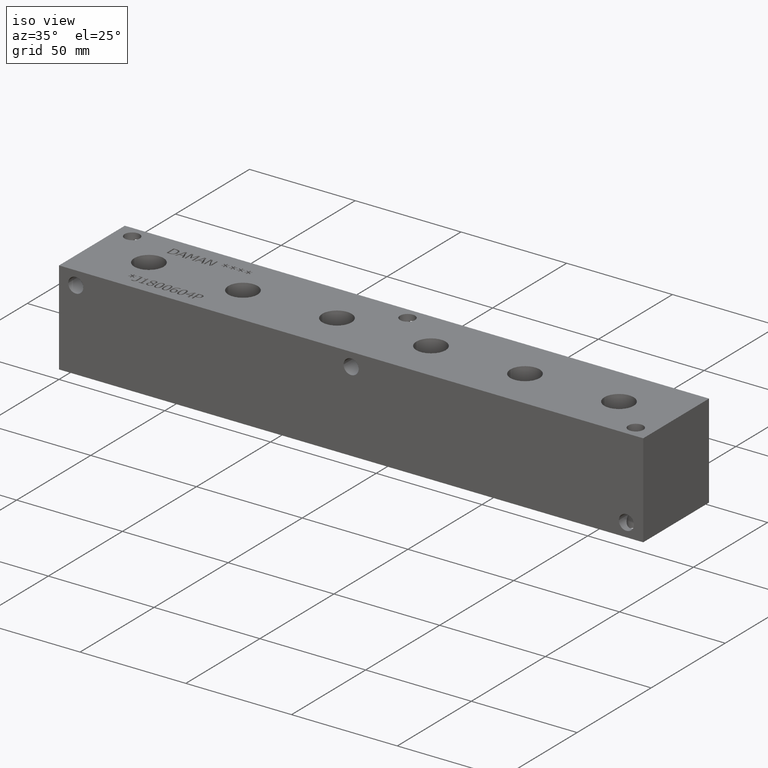
[diagram: clean part render]
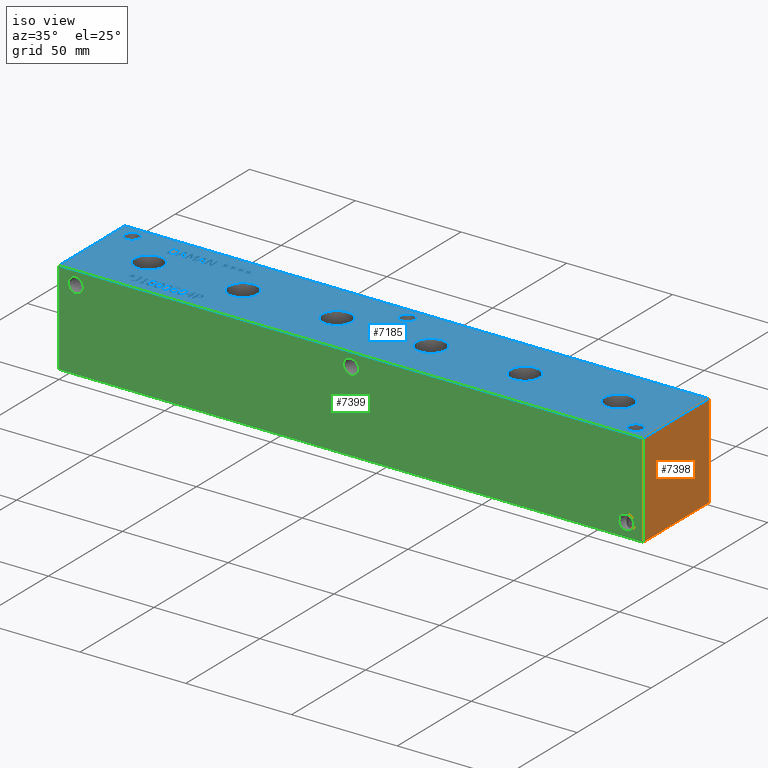
[diagram: same view with three faces highlighted in distinct colors, each labeled with its STEP entity id]
A machine part, iso view with three faces highlighted in distinct colors.
Their STEP definitions:

[orange] entity #7398 — the highlighted planar face has unit normal (1, 0, 0).
#470=PLANE('',#7806);
#846=FACE_OUTER_BOUND('',#1276,.T.);
#1276=EDGE_LOOP('',(#6594,#6595,#6596,#6597));
#1564=LINE('',#11362,#2272);
#1996=LINE('',#12626,#2704);
#1997=LINE('',#12629,#2705);
#1998=LINE('',#12630,#2706);
#2272=VECTOR('',#8228,10.);
#2704=VECTOR('',#9296,10.);
#2705=VECTOR('',#9299,10.);
#2706=VECTOR('',#9300,10.);
#3199=VERTEX_POINT('',#11359);
#3200=VERTEX_POINT('',#11361);
#3586=VERTEX_POINT('',#12624);
#3587=VERTEX_POINT('',#12628);
#4036=EDGE_CURVE('',#3199,#3200,#1564,.T.);
#4598=EDGE_CURVE('',#3586,#3200,#1996,.T.);
#4599=EDGE_CURVE('',#3587,#3586,#1997,.T.);
#4600=EDGE_CURVE('',#3587,#3199,#1998,.T.);
#6594=ORIENTED_EDGE('',*,*,#4599,.T.);
#6595=ORIENTED_EDGE('',*,*,#4598,.T.);
#6596=ORIENTED_EDGE('',*,*,#4036,.F.);
#6597=ORIENTED_EDGE('',*,*,#4600,.F.);
#7398=ADVANCED_FACE('',(#846),#470,.T.);
#7806=AXIS2_PLACEMENT_3D('',#12627,#9297,#9298);
#8228=DIRECTION('',(0.,1.,0.));
#9296=DIRECTION('',(0.,0.,1.));
#9297=DIRECTION('center_axis',(1.,0.,0.));
#9298=DIRECTION('ref_axis',(0.,1.,0.));
#9299=DIRECTION('',(0.,1.,0.));
#9300=DIRECTION('',(0.,0.,1.));
#11359=CARTESIAN_POINT('',(276.225,0.,44.45));
#11361=CARTESIAN_POINT('',(276.225,44.45,44.45));
#11362=CARTESIAN_POINT('',(276.225,0.,44.45));
#12624=CARTESIAN_POINT('',(276.225,44.45,0.));
#12626=CARTESIAN_POINT('',(276.225,44.45,0.));
#12627=CARTESIAN_POINT('Origin',(276.225,0.,0.));
#12628=CARTESIAN_POINT('',(276.225,0.,0.));
#12629=CARTESIAN_POINT('',(276.225,0.,0.));
#12630=CARTESIAN_POINT('',(276.225,0.,0.));

[blue] entity #7185 — the highlighted planar face has unit normal (0, 0, 1).
#74=CIRCLE('',#7488,3.5687);
#75=CIRCLE('',#7489,3.5687);
#76=CIRCLE('',#7490,3.5687);
#77=CIRCLE('',#7491,3.5687);
#78=CIRCLE('',#7492,3.5687);
#79=CIRCLE('',#7493,3.5687);
#80=CIRCLE('',#7494,6.9342);
#81=CIRCLE('',#7495,6.9342);
#82=CIRCLE('',#7496,6.9342);
#83=CIRCLE('',#7497,6.9342);
#84=CIRCLE('',#7498,6.9342);
#85=CIRCLE('',#7499,6.9342);
#86=CIRCLE('',#7500,6.9342);
#87=CIRCLE('',#7501,6.9342);
#88=CIRCLE('',#7502,6.9342);
#89=CIRCLE('',#7503,6.9342);
#90=CIRCLE('',#7504,6.9342);
#91=CIRCLE('',#7505,6.9342);
#184=FACE_BOUND('',#1018,.T.);
#185=FACE_BOUND('',#1019,.T.);
#186=FACE_BOUND('',#1020,.T.);
#187=FACE_BOUND('',#1021,.T.);
#188=FACE_BOUND('',#1022,.T.);
#189=FACE_BOUND('',#1023,.T.);
#190=FACE_BOUND('',#1024,.T.);
#191=FACE_BOUND('',#1025,.T.);
#192=FACE_BOUND('',#1026,.T.);
#193=FACE_BOUND('',#1027,.T.);
#194=FACE_BOUND('',#1028,.T.);
#195=FACE_BOUND('',#1029,.T.);
#196=FACE_BOUND('',#1030,.T.);
#197=FACE_BOUND('',#1031,.T.);
#198=FACE_BOUND('',#1032,.T.);
#199=FACE_BOUND('',#1033,.T.);
#200=FACE_BOUND('',#1034,.T.);
#201=FACE_BOUND('',#1035,.T.);
#202=FACE_BOUND('',#1036,.T.);
#203=FACE_BOUND('',#1037,.T.);
#204=FACE_BOUND('',#1038,.T.);
#205=FACE_BOUND('',#1039,.T.);
#206=FACE_BOUND('',#1040,.T.);
#207=FACE_BOUND('',#1041,.T.);
#208=FACE_BOUND('',#1042,.T.);
#209=FACE_BOUND('',#1043,.T.);
#210=FACE_BOUND('',#1044,.T.);
#211=FACE_BOUND('',#1045,.T.);
#313=PLANE('',#7487);
#633=FACE_OUTER_BOUND('',#1017,.T.);
#1017=EDGE_LOOP('',(#5347,#5348,#5349,#5350));
#1018=EDGE_LOOP('',(#5351,#5352,#5353,#5354,#5355,#5356,#5357,#5358,#5359));
#1019=EDGE_LOOP('',(#5360,#5361,#5362,#5363,#5364,#5365,#5366,#5367,#5368,
#5369,#5370));
#1020=EDGE_LOOP('',(#5371,#5372,#5373,#5374));
#1021=EDGE_LOOP('',(#5375,#5376,#5377,#5378,#5379,#5380,#5381,#5382,#5383,
#5384,#5385,#5386,#5387,#5388));
#1022=EDGE_LOOP('',(#5389,#5390,#5391,#5392));
#1023=EDGE_LOOP('',(#5393,#5394,#5395,#5396));
#1024=EDGE_LOOP('',(#5397,#5398,#5399,#5400,#5401,#5402,#5403,#5404,#5405,
#5406,#5407));
#1025=EDGE_LOOP('',(#5408,#5409,#5410,#5411,#5412,#5413,#5414,#5415,#5416,
#5417,#5418,#5419,#5420,#5421,#5422,#5423,#5424,#5425));
#1026=EDGE_LOOP('',(#5426,#5427,#5428,#5429,#5430,#5431,#5432,#5433,#5434,
#5435,#5436,#5437));
#1027=EDGE_LOOP('',(#5438,#5439,#5440,#5441,#5442,#5443,#5444,#5445,#5446,
#5447,#5448));
#1028=EDGE_LOOP('',(#5449,#5450));
#1029=EDGE_LOOP('',(#5451,#5452));
#1030=EDGE_LOOP('',(#5453,#5454));
#1031=EDGE_LOOP('',(#5455,#5456));
#1032=EDGE_LOOP('',(#5457,#5458));
#1033=EDGE_LOOP('',(#5459,#5460));
#1034=EDGE_LOOP('',(#5461,#5462));
#1035=EDGE_LOOP('',(#5463,#5464));
#1036=EDGE_LOOP('',(#5465,#5466));
#1037=EDGE_LOOP('',(#5467,#5468,#5469,#5470,#5471,#5472,#5473,#5474,#5475,
#5476,#5477,#5478,#5479,#5480,#5481,#5482,#5483,#5484));
#1038=EDGE_LOOP('',(#5485,#5486,#5487,#5488,#5489,#5490,#5491,#5492,#5493,
#5494,#5495,#5496,#5497,#5498,#5499,#5500,#5501,#5502));
#1039=EDGE_LOOP('',(#5503,#5504,#5505,#5506,#5507,#5508,#5509,#5510,#5511,
#5512));
#1040=EDGE_LOOP('',(#5513,#5514,#5515,#5516,#5517,#5518,#5519,#5520));
#1041=EDGE_LOOP('',(#5521,#5522,#5523,#5524,#5525,#5526,#5527));
#1042=EDGE_LOOP('',(#5528,#5529,#5530,#5531,#5532,#5533,#5534,#5535));
#1043=EDGE_LOOP('',(#5536,#5537,#5538,#5539,#5540,#5541,#5542,#5543,#5544,
#5545,#5546,#5547,#5548));
#1044=EDGE_LOOP('',(#5549,#5550,#5551,#5552,#5553,#5554,#5555,#5556,#5557,
#5558,#5559,#5560,#5561,#5562,#5563,#5564,#5565,#5566));
#1045=EDGE_LOOP('',(#5567,#5568,#5569,#5570,#5571,#5572,#5573,#5574,#5575,
#5576,#5577,#5578,#5579,#5580,#5581,#5582,#5583,#5584));
#1308=LINE('',#9446,#2016);
#1311=LINE('',#9452,#2019);
#1314=LINE('',#9458,#2022);
#1317=LINE('',#9464,#2025);
#1320=LINE('',#9470,#2028);
#1333=LINE('',#9531,#2041);
#1337=LINE('',#9539,#2045);
#1340=LINE('',#9545,#2048);
#1343=LINE('',#9551,#2051);
#1346=LINE('',#9557,#2054);
#1349=LINE('',#9563,#2057);
#1352=LINE('',#9569,#2060);
#1355=LINE('',#9575,#2063);
#1358=LINE('',#9581,#2066);
#1361=LINE('',#9587,#2069);
#1364=LINE('',#9592,#2072);
#1391=LINE('',#10057,#2099);
#1394=LINE('',#10063,#2102);
#1427=LINE('',#10659,#2135);
#1431=LINE('',#10667,#2139);
#1434=LINE('',#10673,#2142);
#1437=LINE('',#10679,#2145);
#1441=LINE('',#10704,#2149);
#1444=LINE('',#10710,#2152);
#1447=LINE('',#10716,#2155);
#1450=LINE('',#10722,#2158);
#1453=LINE('',#10728,#2161);
#1456=LINE('',#10733,#2164);
#1458=LINE('',#10739,#2166);
#1462=LINE('',#10747,#2170);
#1465=LINE('',#10753,#2173);
#1468=LINE('',#10759,#2176);
#1471=LINE('',#10765,#2179);
#1474=LINE('',#10771,#2182);
#1477=LINE('',#10777,#2185);
#1480=LINE('',#10783,#2188);
#1483=LINE('',#10789,#2191);
#1486=LINE('',#10795,#2194);
#1489=LINE('',#10801,#2197);
#1492=LINE('',#10807,#2200);
#1495=LINE('',#10813,#2203);
#1498=LINE('',#10819,#2206);
#1501=LINE('',#10825,#2209);
#1504=LINE('',#10831,#2212);
#1507=LINE('',#10837,#2215);
#1510=LINE('',#10842,#2218);
#1512=LINE('',#10848,#2220);
#1516=LINE('',#10856,#2224);
#1519=LINE('',#10862,#2227);
#1522=LINE('',#10868,#2230);
#1525=LINE('',#10874,#2233);
#1531=LINE('',#10937,#2239);
#1534=LINE('',#10943,#2242);
#1551=LINE('',#11216,#2259);
#1558=LINE('',#11298,#2266);
#1563=LINE('',#11360,#2271);
#1564=LINE('',#11362,#2272);
#1565=LINE('',#11364,#2273);
#1566=LINE('',#11365,#2274);
#1567=LINE('',#11404,#2275);
#1568=LINE('',#11406,#2276);
#1569=LINE('',#11408,#2277);
#1570=LINE('',#11410,#2278);
#1571=LINE('',#11412,#2279);
#1572=LINE('',#11414,#2280);
#1573=LINE('',#11416,#2281);
#1574=LINE('',#11418,#2282);
#1575=LINE('',#11420,#2283);
#1576=LINE('',#11422,#2284);
#1577=LINE('',#11424,#2285);
#1578=LINE('',#11426,#2286);
#1579=LINE('',#11428,#2287);
#1580=LINE('',#11430,#2288);
#1581=LINE('',#11432,#2289);
#1582=LINE('',#11434,#2290);
#1583=LINE('',#11436,#2291);
#1584=LINE('',#11437,#2292);
#1585=LINE('',#11440,#2293);
#1586=LINE('',#11442,#2294);
#1587=LINE('',#11444,#2295);
#1588=LINE('',#11446,#2296);
#1589=LINE('',#11448,#2297);
#1590=LINE('',#11450,#2298);
#1591=LINE('',#11452,#2299);
#1592=LINE('',#11454,#2300);
#1593=LINE('',#11456,#2301);
#1594=LINE('',#11458,#2302);
#1595=LINE('',#11460,#2303);
#1596=LINE('',#11462,#2304);
#1597=LINE('',#11464,#2305);
#1598=LINE('',#11466,#2306);
#1599=LINE('',#11468,#2307);
#1600=LINE('',#11470,#2308);
#1601=LINE('',#11472,#2309);
#1602=LINE('',#11473,#2310);
#1603=LINE('',#11476,#2311);
#1604=LINE('',#11478,#2312);
#1605=LINE('',#11480,#2313);
#1606=LINE('',#11482,#2314);
#1607=LINE('',#11484,#2315);
#1608=LINE('',#11486,#2316);
#1609=LINE('',#11488,#2317);
#1610=LINE('',#11490,#2318);
#1611=LINE('',#11492,#2319);
#1612=LINE('',#11493,#2320);
#1613=LINE('',#11496,#2321);
#1614=LINE('',#11498,#2322);
#1615=LINE('',#11500,#2323);
#1616=LINE('',#11502,#2324);
#1617=LINE('',#11504,#2325);
#1618=LINE('',#11506,#2326);
#1619=LINE('',#11508,#2327);
#1620=LINE('',#11509,#2328);
#1621=LINE('',#11527,#2329);
#1622=LINE('',#11529,#2330);
#1623=LINE('',#11531,#2331);
#1624=LINE('',#11538,#2332);
#1625=LINE('',#11540,#2333);
#1626=LINE('',#11542,#2334);
#1627=LINE('',#11544,#2335);
#1628=LINE('',#11546,#2336);
#1629=LINE('',#11548,#2337);
#1630=LINE('',#11550,#2338);
#1631=LINE('',#11551,#2339);
#1632=LINE('',#11554,#2340);
#1633=LINE('',#11556,#2341);
#1634=LINE('',#11558,#2342);
#1635=LINE('',#11560,#2343);
#1636=LINE('',#11562,#2344);
#1637=LINE('',#11564,#2345);
#1638=LINE('',#11566,#2346);
#1639=LINE('',#11568,#2347);
#1640=LINE('',#11570,#2348);
#1641=LINE('',#11572,#2349);
#1642=LINE('',#11574,#2350);
#1643=LINE('',#11576,#2351);
#1644=LINE('',#11577,#2352);
#1645=LINE('',#11580,#2353);
#1646=LINE('',#11582,#2354);
#1647=LINE('',#11584,#2355);
#1648=LINE('',#11586,#2356);
#1649=LINE('',#11588,#2357);
#1650=LINE('',#11590,#2358);
#1651=LINE('',#11592,#2359);
#1652=LINE('',#11594,#2360);
#1653=LINE('',#11596,#2361);
#1654=LINE('',#11598,#2362);
#1655=LINE('',#11600,#2363);
#1656=LINE('',#11602,#2364);
#1657=LINE('',#11604,#2365);
#1658=LINE('',#11606,#2366);
#1659=LINE('',#11608,#2367);
#1660=LINE('',#11610,#2368);
#1661=LINE('',#11612,#2369);
#1662=LINE('',#11613,#2370);
#1663=LINE('',#11616,#2371);
#1664=LINE('',#11618,#2372);
#1665=LINE('',#11620,#2373);
#1666=LINE('',#11622,#2374);
#1667=LINE('',#11624,#2375);
#1668=LINE('',#11626,#2376);
#1669=LINE('',#11628,#2377);
#1670=LINE('',#11630,#2378);
#1671=LINE('',#11632,#2379);
#1672=LINE('',#11634,#2380);
#1673=LINE('',#11636,#2381);
#1674=LINE('',#11638,#2382);
#1675=LINE('',#11640,#2383);
#1676=LINE('',#11642,#2384);
#1677=LINE('',#11644,#2385);
#1678=LINE('',#11646,#2386);
#1679=LINE('',#11648,#2387);
#1680=LINE('',#11649,#2388);
#2016=VECTOR('',#7836,10.);
#2019=VECTOR('',#7841,10.);
#2022=VECTOR('',#7846,10.);
#2025=VECTOR('',#7851,10.);
#2028=VECTOR('',#7856,10.);
#2041=VECTOR('',#7879,10.);
#2045=VECTOR('',#7885,10.);
#2048=VECTOR('',#7890,10.);
#2051=VECTOR('',#7895,10.);
#2054=VECTOR('',#7900,10.);
#2057=VECTOR('',#7905,10.);
#2060=VECTOR('',#7910,10.);
#2063=VECTOR('',#7915,10.);
#2066=VECTOR('',#7920,10.);
#2069=VECTOR('',#7925,10.);
#2072=VECTOR('',#7930,10.);
#2099=VECTOR('',#7963,10.);
#2102=VECTOR('',#7968,10.);
#2135=VECTOR('',#8009,10.);
#2139=VECTOR('',#8015,10.);
#2142=VECTOR('',#8020,10.);
#2145=VECTOR('',#8025,10.);
#2149=VECTOR('',#8031,10.);
#2152=VECTOR('',#8036,10.);
#2155=VECTOR('',#8041,10.);
#2158=VECTOR('',#8046,10.);
#2161=VECTOR('',#8051,10.);
#2164=VECTOR('',#8056,10.);
#2166=VECTOR('',#8062,10.);
#2170=VECTOR('',#8068,10.);
#2173=VECTOR('',#8073,10.);
#2176=VECTOR('',#8078,10.);
#2179=VECTOR('',#8083,10.);
#2182=VECTOR('',#8088,10.);
#2185=VECTOR('',#8093,10.);
#2188=VECTOR('',#8098,10.);
#2191=VECTOR('',#8103,10.);
#2194=VECTOR('',#8108,10.);
#2197=VECTOR('',#8113,10.);
#2200=VECTOR('',#8118,10.);
#2203=VECTOR('',#8123,10.);
#2206=VECTOR('',#8128,10.);
#2209=VECTOR('',#8133,10.);
#2212=VECTOR('',#8138,10.);
#2215=VECTOR('',#8143,10.);
#2218=VECTOR('',#8148,10.);
#2220=VECTOR('',#8154,10.);
#2224=VECTOR('',#8160,10.);
#2227=VECTOR('',#8165,10.);
#2230=VECTOR('',#8170,10.);
#2233=VECTOR('',#8175,10.);
#2239=VECTOR('',#8183,10.);
#2242=VECTOR('',#8188,10.);
#2259=VECTOR('',#8209,10.);
#2266=VECTOR('',#8218,10.);
#2271=VECTOR('',#8227,10.);
#2272=VECTOR('',#8228,10.);
#2273=VECTOR('',#8229,10.);
#2274=VECTOR('',#8230,10.);
#2275=VECTOR('',#8267,10.);
#2276=VECTOR('',#8268,10.);
#2277=VECTOR('',#8269,10.);
#2278=VECTOR('',#8270,10.);
#2279=VECTOR('',#8271,10.);
#2280=VECTOR('',#8272,10.);
#2281=VECTOR('',#8273,10.);
#2282=VECTOR('',#8274,10.);
#2283=VECTOR('',#8275,10.);
#2284=VECTOR('',#8276,10.);
#2285=VECTOR('',#8277,10.);
#2286=VECTOR('',#8278,10.);
#2287=VECTOR('',#8279,10.);
#2288=VECTOR('',#8280,10.);
#2289=VECTOR('',#8281,10.);
#2290=VECTOR('',#8282,10.);
#2291=VECTOR('',#8283,10.);
#2292=VECTOR('',#8284,10.);
#2293=VECTOR('',#8285,10.);
#2294=VECTOR('',#8286,10.);
#2295=VECTOR('',#8287,10.);
#2296=VECTOR('',#8288,10.);
#2297=VECTOR('',#8289,10.);
#2298=VECTOR('',#8290,10.);
#2299=VECTOR('',#8291,10.);
#2300=VECTOR('',#8292,10.);
#2301=VECTOR('',#8293,10.);
#2302=VECTOR('',#8294,10.);
#2303=VECTOR('',#8295,10.);
#2304=VECTOR('',#8296,10.);
#2305=VECTOR('',#8297,10.);
#2306=VECTOR('',#8298,10.);
#2307=VECTOR('',#8299,10.);
#2308=VECTOR('',#8300,10.);
#2309=VECTOR('',#8301,10.);
#2310=VECTOR('',#8302,10.);
#2311=VECTOR('',#8303,10.);
#2312=VECTOR('',#8304,10.);
#2313=VECTOR('',#8305,10.);
#2314=VECTOR('',#8306,10.);
#2315=VECTOR('',#8307,10.);
#2316=VECTOR('',#8308,10.);
#2317=VECTOR('',#8309,10.);
#2318=VECTOR('',#8310,10.);
#2319=VECTOR('',#8311,10.);
#2320=VECTOR('',#8312,10.);
#2321=VECTOR('',#8313,10.);
#2322=VECTOR('',#8314,10.);
#2323=VECTOR('',#8315,10.);
#2324=VECTOR('',#8316,10.);
#2325=VECTOR('',#8317,10.);
#2326=VECTOR('',#8318,10.);
#2327=VECTOR('',#8319,10.);
#2328=VECTOR('',#8320,10.);
#2329=VECTOR('',#8321,10.);
#2330=VECTOR('',#8322,10.);
#2331=VECTOR('',#8323,10.);
#2332=VECTOR('',#8324,10.);
#2333=VECTOR('',#8325,10.);
#2334=VECTOR('',#8326,10.);
#2335=VECTOR('',#8327,10.);
#2336=VECTOR('',#8328,10.);
#2337=VECTOR('',#8329,10.);
#2338=VECTOR('',#8330,10.);
#2339=VECTOR('',#8331,10.);
#2340=VECTOR('',#8332,10.);
#2341=VECTOR('',#8333,10.);
#2342=VECTOR('',#8334,10.);
#2343=VECTOR('',#8335,10.);
#2344=VECTOR('',#8336,10.);
#2345=VECTOR('',#8337,10.);
#2346=VECTOR('',#8338,10.);
#2347=VECTOR('',#8339,10.);
#2348=VECTOR('',#8340,10.);
#2349=VECTOR('',#8341,10.);
#2350=VECTOR('',#8342,10.);
#2351=VECTOR('',#8343,10.);
#2352=VECTOR('',#8344,10.);
#2353=VECTOR('',#8345,10.);
#2354=VECTOR('',#8346,10.);
#2355=VECTOR('',#8347,10.);
#2356=VECTOR('',#8348,10.);
#2357=VECTOR('',#8349,10.);
#2358=VECTOR('',#8350,10.);
#2359=VECTOR('',#8351,10.);
#2360=VECTOR('',#8352,10.);
#2361=VECTOR('',#8353,10.);
#2362=VECTOR('',#8354,10.);
#2363=VECTOR('',#8355,10.);
#2364=VECTOR('',#8356,10.);
#2365=VECTOR('',#8357,10.);
#2366=VECTOR('',#8358,10.);
#2367=VECTOR('',#8359,10.);
#2368=VECTOR('',#8360,10.);
#2369=VECTOR('',#8361,10.);
#2370=VECTOR('',#8362,10.);
#2371=VECTOR('',#8363,10.);
#2372=VECTOR('',#8364,10.);
#2373=VECTOR('',#8365,10.);
#2374=VECTOR('',#8366,10.);
#2375=VECTOR('',#8367,10.);
#2376=VECTOR('',#8368,10.);
#2377=VECTOR('',#8369,10.);
#2378=VECTOR('',#8370,10.);
#2379=VECTOR('',#8371,10.);
#2380=VECTOR('',#8372,10.);
#2381=VECTOR('',#8373,10.);
#2382=VECTOR('',#8374,10.);
#2383=VECTOR('',#8375,10.);
#2384=VECTOR('',#8376,10.);
#2385=VECTOR('',#8377,10.);
#2386=VECTOR('',#8378,10.);
#2387=VECTOR('',#8379,10.);
#2388=VECTOR('',#8380,10.);
#2716=B_SPLINE_CURVE_WITH_KNOTS('',2,(#9413,#9414,#9415,#9416),
 .UNSPECIFIED.,.F.,.F.,(3,1,3),(0.,1.,2.),.UNSPECIFIED.);
#2718=B_SPLINE_CURVE_WITH_KNOTS('',2,(#9434,#9435,#9436,#9437),
 .UNSPECIFIED.,.F.,.F.,(3,1,3),(0.,1.,2.),.UNSPECIFIED.);
#2720=B_SPLINE_CURVE_WITH_KNOTS('',2,(#9483,#9484,#9485,#9486),
 .UNSPECIFIED.,.F.,.F.,(3,1,3),(0.,1.,2.),.UNSPECIFIED.);
#2722=B_SPLINE_CURVE_WITH_KNOTS('',2,(#9501,#9502,#9503,#9504),
 .UNSPECIFIED.,.F.,.F.,(3,1,3),(0.,1.,2.),.UNSPECIFIED.);
#2740=B_SPLINE_CURVE_WITH_KNOTS('',2,(#9757,#9758,#9759,#9760),
 .UNSPECIFIED.,.F.,.F.,(3,1,3),(0.,1.,2.),.UNSPECIFIED.);
#2742=B_SPLINE_CURVE_WITH_KNOTS('',2,(#9778,#9779,#9780,#9781),
 .UNSPECIFIED.,.F.,.F.,(3,1,3),(0.,1.,2.),.UNSPECIFIED.);
#2744=B_SPLINE_CURVE_WITH_KNOTS('',2,(#9797,#9798,#9799,#9800),
 .UNSPECIFIED.,.F.,.F.,(3,1,3),(0.,1.,2.),.UNSPECIFIED.);
#2746=B_SPLINE_CURVE_WITH_KNOTS('',2,(#9815,#9816,#9817,#9818),
 .UNSPECIFIED.,.F.,.F.,(3,1,3),(0.,1.,2.),.UNSPECIFIED.);
#2762=B_SPLINE_CURVE_WITH_KNOTS('',2,(#9967,#9968,#9969,#9970),
 .UNSPECIFIED.,.F.,.F.,(3,1,3),(0.,1.,2.),.UNSPECIFIED.);
#2764=B_SPLINE_CURVE_WITH_KNOTS('',2,(#9988,#9989,#9990,#9991),
 .UNSPECIFIED.,.F.,.F.,(3,1,3),(0.,1.,2.),.UNSPECIFIED.);
#2766=B_SPLINE_CURVE_WITH_KNOTS('',2,(#10007,#10008,#10009,#10010),
 .UNSPECIFIED.,.F.,.F.,(3,1,3),(0.,1.,2.),.UNSPECIFIED.);
#2768=B_SPLINE_CURVE_WITH_KNOTS('',2,(#10026,#10027,#10028,#10029),
 .UNSPECIFIED.,.F.,.F.,(3,1,3),(0.,1.,2.),.UNSPECIFIED.);
#2770=B_SPLINE_CURVE_WITH_KNOTS('',2,(#10045,#10046,#10047,#10048),
 .UNSPECIFIED.,.F.,.F.,(3,1,3),(0.,1.,2.),.UNSPECIFIED.);
#2772=B_SPLINE_CURVE_WITH_KNOTS('',2,(#10076,#10077,#10078,#10079),
 .UNSPECIFIED.,.F.,.F.,(3,1,3),(0.,1.,2.),.UNSPECIFIED.);
#2774=B_SPLINE_CURVE_WITH_KNOTS('',2,(#10095,#10096,#10097,#10098),
 .UNSPECIFIED.,.F.,.F.,(3,1,3),(0.,1.,2.),.UNSPECIFIED.);
#2776=B_SPLINE_CURVE_WITH_KNOTS('',2,(#10114,#10115,#10116,#10117),
 .UNSPECIFIED.,.F.,.F.,(3,1,3),(0.,1.,2.),.UNSPECIFIED.);
#2778=B_SPLINE_CURVE_WITH_KNOTS('',2,(#10133,#10134,#10135,#10136),
 .UNSPECIFIED.,.F.,.F.,(3,1,3),(0.,1.,2.),.UNSPECIFIED.);
#2780=B_SPLINE_CURVE_WITH_KNOTS('',2,(#10152,#10153,#10154,#10155),
 .UNSPECIFIED.,.F.,.F.,(3,1,3),(0.,1.,2.),.UNSPECIFIED.);
#2782=B_SPLINE_CURVE_WITH_KNOTS('',2,(#10171,#10172,#10173,#10174),
 .UNSPECIFIED.,.F.,.F.,(3,1,3),(0.,1.,2.),.UNSPECIFIED.);
#2784=B_SPLINE_CURVE_WITH_KNOTS('',2,(#10189,#10190,#10191,#10192),
 .UNSPECIFIED.,.F.,.F.,(3,1,3),(0.,1.,2.),.UNSPECIFIED.);
#2802=B_SPLINE_CURVE_WITH_KNOTS('',2,(#10360,#10361,#10362,#10363),
 .UNSPECIFIED.,.F.,.F.,(3,1,3),(0.,1.,2.),.UNSPECIFIED.);
#2804=B_SPLINE_CURVE_WITH_KNOTS('',2,(#10381,#10382,#10383,#10384),
 .UNSPECIFIED.,.F.,.F.,(3,1,3),(0.,1.,2.),.UNSPECIFIED.);
#2806=B_SPLINE_CURVE_WITH_KNOTS('',2,(#10400,#10401,#10402,#10403),
 .UNSPECIFIED.,.F.,.F.,(3,1,3),(0.,1.,2.),.UNSPECIFIED.);
#2808=B_SPLINE_CURVE_WITH_KNOTS('',2,(#10418,#10419,#10420,#10421),
 .UNSPECIFIED.,.F.,.F.,(3,1,3),(0.,1.,2.),.UNSPECIFIED.);
#2826=B_SPLINE_CURVE_WITH_KNOTS('',2,(#10589,#10590,#10591,#10592),
 .UNSPECIFIED.,.F.,.F.,(3,1,3),(0.,1.,2.),.UNSPECIFIED.);
#2828=B_SPLINE_CURVE_WITH_KNOTS('',2,(#10610,#10611,#10612,#10613),
 .UNSPECIFIED.,.F.,.F.,(3,1,3),(0.,1.,2.),.UNSPECIFIED.);
#2830=B_SPLINE_CURVE_WITH_KNOTS('',2,(#10629,#10630,#10631,#10632),
 .UNSPECIFIED.,.F.,.F.,(3,1,3),(0.,1.,2.),.UNSPECIFIED.);
#2832=B_SPLINE_CURVE_WITH_KNOTS('',2,(#10647,#10648,#10649,#10650),
 .UNSPECIFIED.,.F.,.F.,(3,1,3),(0.,1.,2.),.UNSPECIFIED.);
#2834=B_SPLINE_CURVE_WITH_KNOTS('',2,(#10692,#10693,#10694,#10695),
 .UNSPECIFIED.,.F.,.F.,(3,1,3),(0.,1.,2.),.UNSPECIFIED.);
#2836=B_SPLINE_CURVE_WITH_KNOTS('',2,(#10887,#10888,#10889,#10890),
 .UNSPECIFIED.,.F.,.F.,(3,1,3),(0.,1.,2.),.UNSPECIFIED.);
#2838=B_SPLINE_CURVE_WITH_KNOTS('',2,(#10906,#10907,#10908,#10909),
 .UNSPECIFIED.,.F.,.F.,(3,1,3),(0.,1.,2.),.UNSPECIFIED.);
#2840=B_SPLINE_CURVE_WITH_KNOTS('',2,(#10925,#10926,#10927,#10928),
 .UNSPECIFIED.,.F.,.F.,(3,1,3),(0.,1.,2.),.UNSPECIFIED.);
#2842=B_SPLINE_CURVE_WITH_KNOTS('',2,(#10956,#10957,#10958,#10959),
 .UNSPECIFIED.,.F.,.F.,(3,1,3),(0.,1.,2.),.UNSPECIFIED.);
#2844=B_SPLINE_CURVE_WITH_KNOTS('',2,(#10974,#10975,#10976,#10977),
 .UNSPECIFIED.,.F.,.F.,(3,1,3),(0.,1.,2.),.UNSPECIFIED.);
#2866=B_SPLINE_CURVE_WITH_KNOTS('',2,(#11183,#11184,#11185,#11186),
 .UNSPECIFIED.,.F.,.F.,(3,1,3),(0.,1.,2.),.UNSPECIFIED.);
#2868=B_SPLINE_CURVE_WITH_KNOTS('',2,(#11204,#11205,#11206,#11207),
 .UNSPECIFIED.,.F.,.F.,(3,1,3),(0.,1.,2.),.UNSPECIFIED.);
#2870=B_SPLINE_CURVE_WITH_KNOTS('',2,(#11229,#11230,#11231,#11232),
 .UNSPECIFIED.,.F.,.F.,(3,1,3),(0.,1.,2.),.UNSPECIFIED.);
#2872=B_SPLINE_CURVE_WITH_KNOTS('',2,(#11248,#11249,#11250,#11251),
 .UNSPECIFIED.,.F.,.F.,(3,1,3),(0.,1.,2.),.UNSPECIFIED.);
#2874=B_SPLINE_CURVE_WITH_KNOTS('',2,(#11267,#11268,#11269,#11270),
 .UNSPECIFIED.,.F.,.F.,(3,1,3),(0.,1.,2.),.UNSPECIFIED.);
#2876=B_SPLINE_CURVE_WITH_KNOTS('',2,(#11286,#11287,#11288,#11289),
 .UNSPECIFIED.,.F.,.F.,(3,1,3),(0.,1.,2.),.UNSPECIFIED.);
#2878=B_SPLINE_CURVE_WITH_KNOTS('',2,(#11311,#11312,#11313,#11314),
 .UNSPECIFIED.,.F.,.F.,(3,1,3),(0.,1.,2.),.UNSPECIFIED.);
#2880=B_SPLINE_CURVE_WITH_KNOTS('',2,(#11330,#11331,#11332,#11333),
 .UNSPECIFIED.,.F.,.F.,(3,1,3),(0.,1.,2.),.UNSPECIFIED.);
#2882=B_SPLINE_CURVE_WITH_KNOTS('',2,(#11348,#11349,#11350,#11351),
 .UNSPECIFIED.,.F.,.F.,(3,1,3),(0.,1.,2.),.UNSPECIFIED.);
#2884=B_SPLINE_CURVE_WITH_KNOTS('',2,(#11512,#11513,#11514,#11515),
 .UNSPECIFIED.,.F.,.F.,(3,1,3),(0.,1.,2.),.UNSPECIFIED.);
#2885=B_SPLINE_CURVE_WITH_KNOTS('',2,(#11517,#11518,#11519,#11520),
 .UNSPECIFIED.,.F.,.F.,(3,1,3),(0.,1.,2.),.UNSPECIFIED.);
#2886=B_SPLINE_CURVE_WITH_KNOTS('',2,(#11522,#11523,#11524,#11525),
 .UNSPECIFIED.,.F.,.F.,(3,1,3),(0.,1.,2.),.UNSPECIFIED.);
#2887=B_SPLINE_CURVE_WITH_KNOTS('',2,(#11532,#11533,#11534,#11535),
 .UNSPECIFIED.,.F.,.F.,(3,1,3),(0.,1.,2.),.UNSPECIFIED.);
#2914=VERTEX_POINT('',#9411);
#2915=VERTEX_POINT('',#9412);
#2918=VERTEX_POINT('',#9433);
#2920=VERTEX_POINT('',#9445);
#2922=VERTEX_POINT('',#9451);
#2924=VERTEX_POINT('',#9457);
#2926=VERTEX_POINT('',#9463);
#2928=VERTEX_POINT('',#9469);
#2930=VERTEX_POINT('',#9482);
#2938=VERTEX_POINT('',#9529);
#2939=VERTEX_POINT('',#9530);
#2942=VERTEX_POINT('',#9538);
#2944=VERTEX_POINT('',#9544);
#2946=VERTEX_POINT('',#9550);
#2948=VERTEX_POINT('',#9556);
#2950=VERTEX_POINT('',#9562);
#2952=VERTEX_POINT('',#9568);
#2954=VERTEX_POINT('',#9574);
#2956=VERTEX_POINT('',#9580);
#2958=VERTEX_POINT('',#9586);
#2976=VERTEX_POINT('',#9755);
#2977=VERTEX_POINT('',#9756);
#2980=VERTEX_POINT('',#9777);
#2982=VERTEX_POINT('',#9796);
#2998=VERTEX_POINT('',#9965);
#2999=VERTEX_POINT('',#9966);
#3002=VERTEX_POINT('',#9987);
#3004=VERTEX_POINT('',#10006);
#3006=VERTEX_POINT('',#10025);
#3008=VERTEX_POINT('',#10044);
#3010=VERTEX_POINT('',#10056);
#3012=VERTEX_POINT('',#10062);
#3014=VERTEX_POINT('',#10075);
#3016=VERTEX_POINT('',#10094);
#3018=VERTEX_POINT('',#10113);
#3020=VERTEX_POINT('',#10132);
#3022=VERTEX_POINT('',#10151);
#3024=VERTEX_POINT('',#10170);
#3042=VERTEX_POINT('',#10358);
#3043=VERTEX_POINT('',#10359);
#3046=VERTEX_POINT('',#10380);
#3048=VERTEX_POINT('',#10399);
#3066=VERTEX_POINT('',#10587);
#3067=VERTEX_POINT('',#10588);
#3070=VERTEX_POINT('',#10609);
#3072=VERTEX_POINT('',#10628);
#3074=VERTEX_POINT('',#10657);
#3075=VERTEX_POINT('',#10658);
#3078=VERTEX_POINT('',#10666);
#3080=VERTEX_POINT('',#10672);
#3082=VERTEX_POINT('',#10678);
#3084=VERTEX_POINT('',#10691);
#3086=VERTEX_POINT('',#10703);
#3088=VERTEX_POINT('',#10709);
#3090=VERTEX_POINT('',#10715);
#3092=VERTEX_POINT('',#10721);
#3094=VERTEX_POINT('',#10727);
#3096=VERTEX_POINT('',#10737);
#3097=VERTEX_POINT('',#10738);
#3100=VERTEX_POINT('',#10746);
#3102=VERTEX_POINT('',#10752);
#3104=VERTEX_POINT('',#10758);
#3106=VERTEX_POINT('',#10764);
#3108=VERTEX_POINT('',#10770);
#3110=VERTEX_POINT('',#10776);
#3112=VERTEX_POINT('',#10782);
#3114=VERTEX_POINT('',#10788);
#3116=VERTEX_POINT('',#10794);
#3118=VERTEX_POINT('',#10800);
#3120=VERTEX_POINT('',#10806);
#3122=VERTEX_POINT('',#10812);
#3124=VERTEX_POINT('',#10818);
#3126=VERTEX_POINT('',#10824);
#3128=VERTEX_POINT('',#10830);
#3130=VERTEX_POINT('',#10836);
#3132=VERTEX_POINT('',#10846);
#3133=VERTEX_POINT('',#10847);
#3136=VERTEX_POINT('',#10855);
#3138=VERTEX_POINT('',#10861);
#3140=VERTEX_POINT('',#10867);
#3142=VERTEX_POINT('',#10873);
#3144=VERTEX_POINT('',#10886);
#3146=VERTEX_POINT('',#10905);
#3148=VERTEX_POINT('',#10924);
#3150=VERTEX_POINT('',#10936);
#3152=VERTEX_POINT('',#10942);
#3154=VERTEX_POINT('',#10955);
#3176=VERTEX_POINT('',#11181);
#3177=VERTEX_POINT('',#11182);
#3180=VERTEX_POINT('',#11203);
#3182=VERTEX_POINT('',#11215);
#3184=VERTEX_POINT('',#11228);
#3186=VERTEX_POINT('',#11247);
#3188=VERTEX_POINT('',#11266);
#3190=VERTEX_POINT('',#11285);
#3192=VERTEX_POINT('',#11297);
#3194=VERTEX_POINT('',#11310);
#3196=VERTEX_POINT('',#11329);
#3198=VERTEX_POINT('',#11358);
#3199=VERTEX_POINT('',#11359);
#3200=VERTEX_POINT('',#11361);
#3201=VERTEX_POINT('',#11363);
#3202=VERTEX_POINT('',#11366);
#3203=VERTEX_POINT('',#11367);
#3204=VERTEX_POINT('',#11370);
#3205=VERTEX_POINT('',#11371);
#3206=VERTEX_POINT('',#11374);
#3207=VERTEX_POINT('',#11375);
#3208=VERTEX_POINT('',#11378);
#3209=VERTEX_POINT('',#11379);
#3210=VERTEX_POINT('',#11382);
#3211=VERTEX_POINT('',#11383);
#3212=VERTEX_POINT('',#11386);
#3213=VERTEX_POINT('',#11387);
#3214=VERTEX_POINT('',#11390);
#3215=VERTEX_POINT('',#11391);
#3216=VERTEX_POINT('',#11394);
#3217=VERTEX_POINT('',#11395);
#3218=VERTEX_POINT('',#11398);
#3219=VERTEX_POINT('',#11399);
#3220=VERTEX_POINT('',#11402);
#3221=VERTEX_POINT('',#11403);
#3222=VERTEX_POINT('',#11405);
#3223=VERTEX_POINT('',#11407);
#3224=VERTEX_POINT('',#11409);
#3225=VERTEX_POINT('',#11411);
#3226=VERTEX_POINT('',#11413);
#3227=VERTEX_POINT('',#11415);
#3228=VERTEX_POINT('',#11417);
#3229=VERTEX_POINT('',#11419);
#3230=VERTEX_POINT('',#11421);
#3231=VERTEX_POINT('',#11423);
#3232=VERTEX_POINT('',#11425);
#3233=VERTEX_POINT('',#11427);
#3234=VERTEX_POINT('',#11429);
#3235=VERTEX_POINT('',#11431);
#3236=VERTEX_POINT('',#11433);
#3237=VERTEX_POINT('',#11435);
#3238=VERTEX_POINT('',#11438);
#3239=VERTEX_POINT('',#11439);
#3240=VERTEX_POINT('',#11441);
#3241=VERTEX_POINT('',#11443);
#3242=VERTEX_POINT('',#11445);
#3243=VERTEX_POINT('',#11447);
#3244=VERTEX_POINT('',#11449);
#3245=VERTEX_POINT('',#11451);
#3246=VERTEX_POINT('',#11453);
#3247=VERTEX_POINT('',#11455);
#3248=VERTEX_POINT('',#11457);
#3249=VERTEX_POINT('',#11459);
#3250=VERTEX_POINT('',#11461);
#3251=VERTEX_POINT('',#11463);
#3252=VERTEX_POINT('',#11465);
#3253=VERTEX_POINT('',#11467);
#3254=VERTEX_POINT('',#11469);
#3255=VERTEX_POINT('',#11471);
#3256=VERTEX_POINT('',#11474);
#3257=VERTEX_POINT('',#11475);
#3258=VERTEX_POINT('',#11477);
#3259=VERTEX_POINT('',#11479);
#3260=VERTEX_POINT('',#11481);
#3261=VERTEX_POINT('',#11483);
#3262=VERTEX_POINT('',#11485);
#3263=VERTEX_POINT('',#11487);
#3264=VERTEX_POINT('',#11489);
#3265=VERTEX_POINT('',#11491);
#3266=VERTEX_POINT('',#11494);
#3267=VERTEX_POINT('',#11495);
#3268=VERTEX_POINT('',#11497);
#3269=VERTEX_POINT('',#11499);
#3270=VERTEX_POINT('',#11501);
#3271=VERTEX_POINT('',#11503);
#3272=VERTEX_POINT('',#11505);
#3273=VERTEX_POINT('',#11507);
#3274=VERTEX_POINT('',#11510);
#3275=VERTEX_POINT('',#11511);
#3276=VERTEX_POINT('',#11516);
#3277=VERTEX_POINT('',#11521);
#3278=VERTEX_POINT('',#11526);
#3279=VERTEX_POINT('',#11528);
#3280=VERTEX_POINT('',#11530);
#3281=VERTEX_POINT('',#11536);
#3282=VERTEX_POINT('',#11537);
#3283=VERTEX_POINT('',#11539);
#3284=VERTEX_POINT('',#11541);
#3285=VERTEX_POINT('',#11543);
#3286=VERTEX_POINT('',#11545);
#3287=VERTEX_POINT('',#11547);
#3288=VERTEX_POINT('',#11549);
#3289=VERTEX_POINT('',#11552);
#3290=VERTEX_POINT('',#11553);
#3291=VERTEX_POINT('',#11555);
#3292=VERTEX_POINT('',#11557);
#3293=VERTEX_POINT('',#11559);
#3294=VERTEX_POINT('',#11561);
#3295=VERTEX_POINT('',#11563);
#3296=VERTEX_POINT('',#11565);
#3297=VERTEX_POINT('',#11567);
#3298=VERTEX_POINT('',#11569);
#3299=VERTEX_POINT('',#11571);
#3300=VERTEX_POINT('',#11573);
#3301=VERTEX_POINT('',#11575);
#3302=VERTEX_POINT('',#11578);
#3303=VERTEX_POINT('',#11579);
#3304=VERTEX_POINT('',#11581);
#3305=VERTEX_POINT('',#11583);
#3306=VERTEX_POINT('',#11585);
#3307=VERTEX_POINT('',#11587);
#3308=VERTEX_POINT('',#11589);
#3309=VERTEX_POINT('',#11591);
#3310=VERTEX_POINT('',#11593);
#3311=VERTEX_POINT('',#11595);
#3312=VERTEX_POINT('',#11597);
#3313=VERTEX_POINT('',#11599);
#3314=VERTEX_POINT('',#11601);
#3315=VERTEX_POINT('',#11603);
#3316=VERTEX_POINT('',#11605);
#3317=VERTEX_POINT('',#11607);
#3318=VERTEX_POINT('',#11609);
#3319=VERTEX_POINT('',#11611);
#3320=VERTEX_POINT('',#11614);
#3321=VERTEX_POINT('',#11615);
#3322=VERTEX_POINT('',#11617);
#3323=VERTEX_POINT('',#11619);
#3324=VERTEX_POINT('',#11621);
#3325=VERTEX_POINT('',#11623);
#3326=VERTEX_POINT('',#11625);
#3327=VERTEX_POINT('',#11627);
#3328=VERTEX_POINT('',#11629);
#3329=VERTEX_POINT('',#11631);
#3330=VERTEX_POINT('',#11633);
#3331=VERTEX_POINT('',#11635);
#3332=VERTEX_POINT('',#11637);
#3333=VERTEX_POINT('',#11639);
#3334=VERTEX_POINT('',#11641);
#3335=VERTEX_POINT('',#11643);
#3336=VERTEX_POINT('',#11645);
#3337=VERTEX_POINT('',#11647);
#3609=EDGE_CURVE('',#2914,#2915,#2716,.T.);
#3613=EDGE_CURVE('',#2918,#2914,#2718,.T.);
#3616=EDGE_CURVE('',#2920,#2918,#1308,.T.);
#3619=EDGE_CURVE('',#2922,#2920,#1311,.T.);
#3622=EDGE_CURVE('',#2924,#2922,#1314,.T.);
#3625=EDGE_CURVE('',#2926,#2924,#1317,.T.);
#3628=EDGE_CURVE('',#2928,#2926,#1320,.T.);
#3631=EDGE_CURVE('',#2930,#2928,#2720,.T.);
#3634=EDGE_CURVE('',#2915,#2930,#2722,.T.);
#3645=EDGE_CURVE('',#2938,#2939,#1333,.T.);
#3649=EDGE_CURVE('',#2942,#2938,#1337,.T.);
#3652=EDGE_CURVE('',#2944,#2942,#1340,.T.);
#3655=EDGE_CURVE('',#2946,#2944,#1343,.T.);
#3658=EDGE_CURVE('',#2948,#2946,#1346,.T.);
#3661=EDGE_CURVE('',#2950,#2948,#1349,.T.);
#3664=EDGE_CURVE('',#2952,#2950,#1352,.T.);
#3667=EDGE_CURVE('',#2954,#2952,#1355,.T.);
#3670=EDGE_CURVE('',#2956,#2954,#1358,.T.);
#3673=EDGE_CURVE('',#2958,#2956,#1361,.T.);
#3676=EDGE_CURVE('',#2939,#2958,#1364,.T.);
#3702=EDGE_CURVE('',#2976,#2977,#2740,.T.);
#3706=EDGE_CURVE('',#2980,#2976,#2742,.T.);
#3709=EDGE_CURVE('',#2982,#2980,#2744,.T.);
#3712=EDGE_CURVE('',#2977,#2982,#2746,.T.);
#3735=EDGE_CURVE('',#2998,#2999,#2762,.T.);
#3739=EDGE_CURVE('',#3002,#2998,#2764,.T.);
#3742=EDGE_CURVE('',#3004,#3002,#2766,.T.);
#3745=EDGE_CURVE('',#3006,#3004,#2768,.T.);
#3748=EDGE_CURVE('',#3008,#3006,#2770,.T.);
#3751=EDGE_CURVE('',#3010,#3008,#1391,.T.);
#3754=EDGE_CURVE('',#3012,#3010,#1394,.T.);
#3757=EDGE_CURVE('',#3014,#3012,#2772,.T.);
#3760=EDGE_CURVE('',#3016,#3014,#2774,.T.);
#3763=EDGE_CURVE('',#3018,#3016,#2776,.T.);
#3766=EDGE_CURVE('',#3020,#3018,#2778,.T.);
#3769=EDGE_CURVE('',#3022,#3020,#2780,.T.);
#3772=EDGE_CURVE('',#3024,#3022,#2782,.T.);
#3775=EDGE_CURVE('',#2999,#3024,#2784,.T.);
#3801=EDGE_CURVE('',#3042,#3043,#2802,.T.);
#3805=EDGE_CURVE('',#3046,#3042,#2804,.T.);
#3808=EDGE_CURVE('',#3048,#3046,#2806,.T.);
#3811=EDGE_CURVE('',#3043,#3048,#2808,.T.);
#3837=EDGE_CURVE('',#3066,#3067,#2826,.T.);
#3841=EDGE_CURVE('',#3070,#3066,#2828,.T.);
#3844=EDGE_CURVE('',#3072,#3070,#2830,.T.);
#3847=EDGE_CURVE('',#3067,#3072,#2832,.T.);
#3849=EDGE_CURVE('',#3074,#3075,#1427,.T.);
#3853=EDGE_CURVE('',#3078,#3074,#1431,.T.);
#3856=EDGE_CURVE('',#3080,#3078,#1434,.T.);
#3859=EDGE_CURVE('',#3082,#3080,#1437,.T.);
#3862=EDGE_CURVE('',#3084,#3082,#2834,.T.);
#3865=EDGE_CURVE('',#3086,#3084,#1441,.T.);
#3868=EDGE_CURVE('',#3088,#3086,#1444,.T.);
#3871=EDGE_CURVE('',#3090,#3088,#1447,.T.);
#3874=EDGE_CURVE('',#3092,#3090,#1450,.T.);
#3877=EDGE_CURVE('',#3094,#3092,#1453,.T.);
#3880=EDGE_CURVE('',#3075,#3094,#1456,.T.);
#3882=EDGE_CURVE('',#3096,#3097,#1458,.T.);
#3886=EDGE_CURVE('',#3100,#3096,#1462,.T.);
#3889=EDGE_CURVE('',#3102,#3100,#1465,.T.);
#3892=EDGE_CURVE('',#3104,#3102,#1468,.T.);
#3895=EDGE_CURVE('',#3106,#3104,#1471,.T.);
#3898=EDGE_CURVE('',#3108,#3106,#1474,.T.);
#3901=EDGE_CURVE('',#3110,#3108,#1477,.T.);
#3904=EDGE_CURVE('',#3112,#3110,#1480,.T.);
#3907=EDGE_CURVE('',#3114,#3112,#1483,.T.);
#3910=EDGE_CURVE('',#3116,#3114,#1486,.T.);
#3913=EDGE_CURVE('',#3118,#3116,#1489,.T.);
#3916=EDGE_CURVE('',#3120,#3118,#1492,.T.);
#3919=EDGE_CURVE('',#3122,#3120,#1495,.T.);
#3922=EDGE_CURVE('',#3124,#3122,#1498,.T.);
#3925=EDGE_CURVE('',#3126,#3124,#1501,.T.);
#3928=EDGE_CURVE('',#3128,#3126,#1504,.T.);
#3931=EDGE_CURVE('',#3130,#3128,#1507,.T.);
#3934=EDGE_CURVE('',#3097,#3130,#1510,.T.);
#3936=EDGE_CURVE('',#3132,#3133,#1512,.T.);
#3940=EDGE_CURVE('',#3136,#3132,#1516,.T.);
#3943=EDGE_CURVE('',#3138,#3136,#1519,.T.);
#3946=EDGE_CURVE('',#3140,#3138,#1522,.T.);
#3949=EDGE_CURVE('',#3142,#3140,#1525,.T.);
#3952=EDGE_CURVE('',#3144,#3142,#2836,.T.);
#3955=EDGE_CURVE('',#3146,#3144,#2838,.T.);
#3958=EDGE_CURVE('',#3148,#3146,#2840,.T.);
#3961=EDGE_CURVE('',#3150,#3148,#1531,.T.);
#3964=EDGE_CURVE('',#3152,#3150,#1534,.T.);
#3967=EDGE_CURVE('',#3154,#3152,#2842,.T.);
#3970=EDGE_CURVE('',#3133,#3154,#2844,.T.);
#4002=EDGE_CURVE('',#3176,#3177,#2866,.T.);
#4006=EDGE_CURVE('',#3180,#3176,#2868,.T.);
#4009=EDGE_CURVE('',#3182,#3180,#1551,.T.);
#4012=EDGE_CURVE('',#3184,#3182,#2870,.T.);
#4015=EDGE_CURVE('',#3186,#3184,#2872,.T.);
#4018=EDGE_CURVE('',#3188,#3186,#2874,.T.);
#4021=EDGE_CURVE('',#3190,#3188,#2876,.T.);
#4024=EDGE_CURVE('',#3192,#3190,#1558,.T.);
#4027=EDGE_CURVE('',#3194,#3192,#2878,.T.);
#4030=EDGE_CURVE('',#3196,#3194,#2880,.T.);
#4033=EDGE_CURVE('',#3177,#3196,#2882,.T.);
#4035=EDGE_CURVE('',#3198,#3199,#1563,.T.);
#4036=EDGE_CURVE('',#3199,#3200,#1564,.T.);
#4037=EDGE_CURVE('',#3200,#3201,#1565,.T.);
#4038=EDGE_CURVE('',#3201,#3198,#1566,.T.);
#4039=EDGE_CURVE('',#3202,#3203,#74,.T.);
#4040=EDGE_CURVE('',#3203,#3202,#75,.T.);
#4041=EDGE_CURVE('',#3204,#3205,#76,.T.);
#4042=EDGE_CURVE('',#3205,#3204,#77,.T.);
#4043=EDGE_CURVE('',#3206,#3207,#78,.T.);
#4044=EDGE_CURVE('',#3207,#3206,#79,.T.);
#4045=EDGE_CURVE('',#3208,#3209,#80,.T.);
#4046=EDGE_CURVE('',#3209,#3208,#81,.T.);
#4047=EDGE_CURVE('',#3210,#3211,#82,.T.);
#4048=EDGE_CURVE('',#3211,#3210,#83,.T.);
#4049=EDGE_CURVE('',#3212,#3213,#84,.T.);
#4050=EDGE_CURVE('',#3213,#3212,#85,.T.);
#4051=EDGE_CURVE('',#3214,#3215,#86,.T.);
#4052=EDGE_CURVE('',#3215,#3214,#87,.T.);
#4053=EDGE_CURVE('',#3216,#3217,#88,.T.);
#4054=EDGE_CURVE('',#3217,#3216,#89,.T.);
#4055=EDGE_CURVE('',#3218,#3219,#90,.T.);
#4056=EDGE_CURVE('',#3219,#3218,#91,.T.);
#4057=EDGE_CURVE('',#3220,#3221,#1567,.T.);
#4058=EDGE_CURVE('',#3221,#3222,#1568,.T.);
#4059=EDGE_CURVE('',#3222,#3223,#1569,.T.);
#4060=EDGE_CURVE('',#3223,#3224,#1570,.T.);
#4061=EDGE_CURVE('',#3224,#3225,#1571,.T.);
#4062=EDGE_CURVE('',#3225,#3226,#1572,.T.);
#4063=EDGE_CURVE('',#3226,#3227,#1573,.T.);
#4064=EDGE_CURVE('',#3227,#3228,#1574,.T.);
#4065=EDGE_CURVE('',#3228,#3229,#1575,.T.);
#4066=EDGE_CURVE('',#3229,#3230,#1576,.T.);
#4067=EDGE_CURVE('',#3230,#3231,#1577,.T.);
#4068=EDGE_CURVE('',#3231,#3232,#1578,.T.);
#4069=EDGE_CURVE('',#3232,#3233,#1579,.T.);
#4070=EDGE_CURVE('',#3233,#3234,#1580,.T.);
#4071=EDGE_CURVE('',#3234,#3235,#1581,.T.);
#4072=EDGE_CURVE('',#3235,#3236,#1582,.T.);
#4073=EDGE_CURVE('',#3236,#3237,#1583,.T.);
#4074=EDGE_CURVE('',#3237,#3220,#1584,.T.);
#4075=EDGE_CURVE('',#3238,#3239,#1585,.T.);
#4076=EDGE_CURVE('',#3239,#3240,#1586,.T.);
#4077=EDGE_CURVE('',#3240,#3241,#1587,.T.);
#4078=EDGE_CURVE('',#3241,#3242,#1588,.T.);
#4079=EDGE_CURVE('',#3242,#3243,#1589,.T.);
#4080=EDGE_CURVE('',#3243,#3244,#1590,.T.);
#4081=EDGE_CURVE('',#3244,#3245,#1591,.T.);
#4082=EDGE_CURVE('',#3245,#3246,#1592,.T.);
#4083=EDGE_CURVE('',#3246,#3247,#1593,.T.);
#4084=EDGE_CURVE('',#3247,#3248,#1594,.T.);
#4085=EDGE_CURVE('',#3248,#3249,#1595,.T.);
#4086=EDGE_CURVE('',#3249,#3250,#1596,.T.);
#4087=EDGE_CURVE('',#3250,#3251,#1597,.T.);
#4088=EDGE_CURVE('',#3251,#3252,#1598,.T.);
#4089=EDGE_CURVE('',#3252,#3253,#1599,.T.);
#4090=EDGE_CURVE('',#3253,#3254,#1600,.T.);
#4091=EDGE_CURVE('',#3254,#3255,#1601,.T.);
#4092=EDGE_CURVE('',#3255,#3238,#1602,.T.);
#4093=EDGE_CURVE('',#3256,#3257,#1603,.T.);
#4094=EDGE_CURVE('',#3257,#3258,#1604,.T.);
#4095=EDGE_CURVE('',#3258,#3259,#1605,.T.);
#4096=EDGE_CURVE('',#3259,#3260,#1606,.T.);
#4097=EDGE_CURVE('',#3260,#3261,#1607,.T.);
#4098=EDGE_CURVE('',#3261,#3262,#1608,.T.);
#4099=EDGE_CURVE('',#3262,#3263,#1609,.T.);
#4100=EDGE_CURVE('',#3263,#3264,#1610,.T.);
#4101=EDGE_CURVE('',#3264,#3265,#1611,.T.);
#4102=EDGE_CURVE('',#3265,#3256,#1612,.T.);
#4103=EDGE_CURVE('',#3266,#3267,#1613,.T.);
#4104=EDGE_CURVE('',#3267,#3268,#1614,.T.);
#4105=EDGE_CURVE('',#3268,#3269,#1615,.T.);
#4106=EDGE_CURVE('',#3269,#3270,#1616,.T.);
#4107=EDGE_CURVE('',#3270,#3271,#1617,.T.);
#4108=EDGE_CURVE('',#3271,#3272,#1618,.T.);
#4109=EDGE_CURVE('',#3272,#3273,#1619,.T.);
#4110=EDGE_CURVE('',#3273,#3266,#1620,.T.);
#4111=EDGE_CURVE('',#3274,#3275,#2884,.T.);
#4112=EDGE_CURVE('',#3275,#3276,#2885,.T.);
#4113=EDGE_CURVE('',#3276,#3277,#2886,.T.);
#4114=EDGE_CURVE('',#3277,#3278,#1621,.T.);
#4115=EDGE_CURVE('',#3278,#3279,#1622,.T.);
#4116=EDGE_CURVE('',#3279,#3280,#1623,.T.);
#4117=EDGE_CURVE('',#3280,#3274,#2887,.T.);
#4118=EDGE_CURVE('',#3281,#3282,#1624,.T.);
#4119=EDGE_CURVE('',#3282,#3283,#1625,.T.);
#4120=EDGE_CURVE('',#3283,#3284,#1626,.T.);
#4121=EDGE_CURVE('',#3284,#3285,#1627,.T.);
#4122=EDGE_CURVE('',#3285,#3286,#1628,.T.);
#4123=EDGE_CURVE('',#3286,#3287,#1629,.T.);
#4124=EDGE_CURVE('',#3287,#3288,#1630,.T.);
#4125=EDGE_CURVE('',#3288,#3281,#1631,.T.);
#4126=EDGE_CURVE('',#3289,#3290,#1632,.T.);
#4127=EDGE_CURVE('',#3290,#3291,#1633,.T.);
#4128=EDGE_CURVE('',#3291,#3292,#1634,.T.);
#4129=EDGE_CURVE('',#3292,#3293,#1635,.T.);
#4130=EDGE_CURVE('',#3293,#3294,#1636,.T.);
#4131=EDGE_CURVE('',#3294,#3295,#1637,.T.);
#4132=EDGE_CURVE('',#3295,#3296,#1638,.T.);
#4133=EDGE_CURVE('',#3296,#3297,#1639,.T.);
#4134=EDGE_CURVE('',#3297,#3298,#1640,.T.);
#4135=EDGE_CURVE('',#3298,#3299,#1641,.T.);
#4136=EDGE_CURVE('',#3299,#3300,#1642,.T.);
#4137=EDGE_CURVE('',#3300,#3301,#1643,.T.);
#4138=EDGE_CURVE('',#3301,#3289,#1644,.T.);
#4139=EDGE_CURVE('',#3302,#3303,#1645,.T.);
#4140=EDGE_CURVE('',#3303,#3304,#1646,.T.);
#4141=EDGE_CURVE('',#3304,#3305,#1647,.T.);
#4142=EDGE_CURVE('',#3305,#3306,#1648,.T.);
#4143=EDGE_CURVE('',#3306,#3307,#1649,.T.);
#4144=EDGE_CURVE('',#3307,#3308,#1650,.T.);
#4145=EDGE_CURVE('',#3308,#3309,#1651,.T.);
#4146=EDGE_CURVE('',#3309,#3310,#1652,.T.);
#4147=EDGE_CURVE('',#3310,#3311,#1653,.T.);
#4148=EDGE_CURVE('',#3311,#3312,#1654,.T.);
#4149=EDGE_CURVE('',#3312,#3313,#1655,.T.);
#4150=EDGE_CURVE('',#3313,#3314,#1656,.T.);
#4151=EDGE_CURVE('',#3314,#3315,#1657,.T.);
#4152=EDGE_CURVE('',#3315,#3316,#1658,.T.);
#4153=EDGE_CURVE('',#3316,#3317,#1659,.T.);
#4154=EDGE_CURVE('',#3317,#3318,#1660,.T.);
#4155=EDGE_CURVE('',#3318,#3319,#1661,.T.);
#4156=EDGE_CURVE('',#3319,#3302,#1662,.T.);
#4157=EDGE_CURVE('',#3320,#3321,#1663,.T.);
#4158=EDGE_CURVE('',#3321,#3322,#1664,.T.);
#4159=EDGE_CURVE('',#3322,#3323,#1665,.T.);
#4160=EDGE_CURVE('',#3323,#3324,#1666,.T.);
#4161=EDGE_CURVE('',#3324,#3325,#1667,.T.);
#4162=EDGE_CURVE('',#3325,#3326,#1668,.T.);
#4163=EDGE_CURVE('',#3326,#3327,#1669,.T.);
#4164=EDGE_CURVE('',#3327,#3328,#1670,.T.);
#4165=EDGE_CURVE('',#3328,#3329,#1671,.T.);
#4166=EDGE_CURVE('',#3329,#3330,#1672,.T.);
#4167=EDGE_CURVE('',#3330,#3331,#1673,.T.);
#4168=EDGE_CURVE('',#3331,#3332,#1674,.T.);
#4169=EDGE_CURVE('',#3332,#3333,#1675,.T.);
#4170=EDGE_CURVE('',#3333,#3334,#1676,.T.);
#4171=EDGE_CURVE('',#3334,#3335,#1677,.T.);
#4172=EDGE_CURVE('',#3335,#3336,#1678,.T.);
#4173=EDGE_CURVE('',#3336,#3337,#1679,.T.);
#4174=EDGE_CURVE('',#3337,#3320,#1680,.T.);
#5347=ORIENTED_EDGE('',*,*,#4035,.T.);
#5348=ORIENTED_EDGE('',*,*,#4036,.T.);
#5349=ORIENTED_EDGE('',*,*,#4037,.T.);
#5350=ORIENTED_EDGE('',*,*,#4038,.T.);
#5351=ORIENTED_EDGE('',*,*,#3609,.T.);
#5352=ORIENTED_EDGE('',*,*,#3634,.T.);
#5353=ORIENTED_EDGE('',*,*,#3631,.T.);
#5354=ORIENTED_EDGE('',*,*,#3628,.T.);
#5355=ORIENTED_EDGE('',*,*,#3625,.T.);
#5356=ORIENTED_EDGE('',*,*,#3622,.T.);
#5357=ORIENTED_EDGE('',*,*,#3619,.T.);
#5358=ORIENTED_EDGE('',*,*,#3616,.T.);
#5359=ORIENTED_EDGE('',*,*,#3613,.T.);
#5360=ORIENTED_EDGE('',*,*,#3645,.T.);
#5361=ORIENTED_EDGE('',*,*,#3676,.T.);
#5362=ORIENTED_EDGE('',*,*,#3673,.T.);
#5363=ORIENTED_EDGE('',*,*,#3670,.T.);
#5364=ORIENTED_EDGE('',*,*,#3667,.T.);
#5365=ORIENTED_EDGE('',*,*,#3664,.T.);
#5366=ORIENTED_EDGE('',*,*,#3661,.T.);
#5367=ORIENTED_EDGE('',*,*,#3658,.T.);
#5368=ORIENTED_EDGE('',*,*,#3655,.T.);
#5369=ORIENTED_EDGE('',*,*,#3652,.T.);
#5370=ORIENTED_EDGE('',*,*,#3649,.T.);
#5371=ORIENTED_EDGE('',*,*,#3702,.T.);
#5372=ORIENTED_EDGE('',*,*,#3712,.T.);
#5373=ORIENTED_EDGE('',*,*,#3709,.T.);
#5374=ORIENTED_EDGE('',*,*,#3706,.T.);
#5375=ORIENTED_EDGE('',*,*,#3735,.T.);
#5376=ORIENTED_EDGE('',*,*,#3775,.T.);
#5377=ORIENTED_EDGE('',*,*,#3772,.T.);
#5378=ORIENTED_EDGE('',*,*,#3769,.T.);
#5379=ORIENTED_EDGE('',*,*,#3766,.T.);
#5380=ORIENTED_EDGE('',*,*,#3763,.T.);
#5381=ORIENTED_EDGE('',*,*,#3760,.T.);
#5382=ORIENTED_EDGE('',*,*,#3757,.T.);
#5383=ORIENTED_EDGE('',*,*,#3754,.T.);
#5384=ORIENTED_EDGE('',*,*,#3751,.T.);
#5385=ORIENTED_EDGE('',*,*,#3748,.T.);
#5386=ORIENTED_EDGE('',*,*,#3745,.T.);
#5387=ORIENTED_EDGE('',*,*,#3742,.T.);
#5388=ORIENTED_EDGE('',*,*,#3739,.T.);
#5389=ORIENTED_EDGE('',*,*,#3801,.T.);
#5390=ORIENTED_EDGE('',*,*,#3811,.T.);
#5391=ORIENTED_EDGE('',*,*,#3808,.T.);
#5392=ORIENTED_EDGE('',*,*,#3805,.T.);
#5393=ORIENTED_EDGE('',*,*,#3837,.T.);
#5394=ORIENTED_EDGE('',*,*,#3847,.T.);
#5395=ORIENTED_EDGE('',*,*,#3844,.T.);
#5396=ORIENTED_EDGE('',*,*,#3841,.T.);
#5397=ORIENTED_EDGE('',*,*,#3849,.T.);
#5398=ORIENTED_EDGE('',*,*,#3880,.T.);
#5399=ORIENTED_EDGE('',*,*,#3877,.T.);
#5400=ORIENTED_EDGE('',*,*,#3874,.T.);
#5401=ORIENTED_EDGE('',*,*,#3871,.T.);
#5402=ORIENTED_EDGE('',*,*,#3868,.T.);
#5403=ORIENTED_EDGE('',*,*,#3865,.T.);
#5404=ORIENTED_EDGE('',*,*,#3862,.T.);
#5405=ORIENTED_EDGE('',*,*,#3859,.T.);
#5406=ORIENTED_EDGE('',*,*,#3856,.T.);
#5407=ORIENTED_EDGE('',*,*,#3853,.T.);
#5408=ORIENTED_EDGE('',*,*,#3882,.T.);
#5409=ORIENTED_EDGE('',*,*,#3934,.T.);
#5410=ORIENTED_EDGE('',*,*,#3931,.T.);
#5411=ORIENTED_EDGE('',*,*,#3928,.T.);
#5412=ORIENTED_EDGE('',*,*,#3925,.T.);
#5413=ORIENTED_EDGE('',*,*,#3922,.T.);
#5414=ORIENTED_EDGE('',*,*,#3919,.T.);
#5415=ORIENTED_EDGE('',*,*,#3916,.T.);
#5416=ORIENTED_EDGE('',*,*,#3913,.T.);
#5417=ORIENTED_EDGE('',*,*,#3910,.T.);
#5418=ORIENTED_EDGE('',*,*,#3907,.T.);
#5419=ORIENTED_EDGE('',*,*,#3904,.T.);
#5420=ORIENTED_EDGE('',*,*,#3901,.T.);
#5421=ORIENTED_EDGE('',*,*,#3898,.T.);
#5422=ORIENTED_EDGE('',*,*,#3895,.T.);
#5423=ORIENTED_EDGE('',*,*,#3892,.T.);
#5424=ORIENTED_EDGE('',*,*,#3889,.T.);
#5425=ORIENTED_EDGE('',*,*,#3886,.T.);
#5426=ORIENTED_EDGE('',*,*,#3936,.T.);
#5427=ORIENTED_EDGE('',*,*,#3970,.T.);
#5428=ORIENTED_EDGE('',*,*,#3967,.T.);
#5429=ORIENTED_EDGE('',*,*,#3964,.T.);
#5430=ORIENTED_EDGE('',*,*,#3961,.T.);
#5431=ORIENTED_EDGE('',*,*,#3958,.T.);
#5432=ORIENTED_EDGE('',*,*,#3955,.T.);
#5433=ORIENTED_EDGE('',*,*,#3952,.T.);
#5434=ORIENTED_EDGE('',*,*,#3949,.T.);
#5435=ORIENTED_EDGE('',*,*,#3946,.T.);
#5436=ORIENTED_EDGE('',*,*,#3943,.T.);
#5437=ORIENTED_EDGE('',*,*,#3940,.T.);
#5438=ORIENTED_EDGE('',*,*,#4002,.T.);
#5439=ORIENTED_EDGE('',*,*,#4033,.T.);
#5440=ORIENTED_EDGE('',*,*,#4030,.T.);
#5441=ORIENTED_EDGE('',*,*,#4027,.T.);
#5442=ORIENTED_EDGE('',*,*,#4024,.T.);
#5443=ORIENTED_EDGE('',*,*,#4021,.T.);
#5444=ORIENTED_EDGE('',*,*,#4018,.T.);
#5445=ORIENTED_EDGE('',*,*,#4015,.T.);
#5446=ORIENTED_EDGE('',*,*,#4012,.T.);
#5447=ORIENTED_EDGE('',*,*,#4009,.T.);
#5448=ORIENTED_EDGE('',*,*,#4006,.T.);
#5449=ORIENTED_EDGE('',*,*,#4039,.T.);
#5450=ORIENTED_EDGE('',*,*,#4040,.T.);
#5451=ORIENTED_EDGE('',*,*,#4041,.T.);
#5452=ORIENTED_EDGE('',*,*,#4042,.T.);
#5453=ORIENTED_EDGE('',*,*,#4043,.T.);
#5454=ORIENTED_EDGE('',*,*,#4044,.T.);
#5455=ORIENTED_EDGE('',*,*,#4045,.T.);
#5456=ORIENTED_EDGE('',*,*,#4046,.T.);
#5457=ORIENTED_EDGE('',*,*,#4047,.T.);
#5458=ORIENTED_EDGE('',*,*,#4048,.T.);
#5459=ORIENTED_EDGE('',*,*,#4049,.T.);
#5460=ORIENTED_EDGE('',*,*,#4050,.T.);
#5461=ORIENTED_EDGE('',*,*,#4051,.T.);
#5462=ORIENTED_EDGE('',*,*,#4052,.T.);
#5463=ORIENTED_EDGE('',*,*,#4053,.T.);
#5464=ORIENTED_EDGE('',*,*,#4054,.T.);
#5465=ORIENTED_EDGE('',*,*,#4055,.T.);
#5466=ORIENTED_EDGE('',*,*,#4056,.T.);
#5467=ORIENTED_EDGE('',*,*,#4057,.T.);
#5468=ORIENTED_EDGE('',*,*,#4058,.T.);
#5469=ORIENTED_EDGE('',*,*,#4059,.T.);
#5470=ORIENTED_EDGE('',*,*,#4060,.T.);
#5471=ORIENTED_EDGE('',*,*,#4061,.T.);
#5472=ORIENTED_EDGE('',*,*,#4062,.T.);
#5473=ORIENTED_EDGE('',*,*,#4063,.T.);
#5474=ORIENTED_EDGE('',*,*,#4064,.T.);
#5475=ORIENTED_EDGE('',*,*,#4065,.T.);
#5476=ORIENTED_EDGE('',*,*,#4066,.T.);
#5477=ORIENTED_EDGE('',*,*,#4067,.T.);
#5478=ORIENTED_EDGE('',*,*,#4068,.T.);
#5479=ORIENTED_EDGE('',*,*,#4069,.T.);
#5480=ORIENTED_EDGE('',*,*,#4070,.T.);
#5481=ORIENTED_EDGE('',*,*,#4071,.T.);
#5482=ORIENTED_EDGE('',*,*,#4072,.T.);
#5483=ORIENTED_EDGE('',*,*,#4073,.T.);
#5484=ORIENTED_EDGE('',*,*,#4074,.T.);
#5485=ORIENTED_EDGE('',*,*,#4075,.T.);
#5486=ORIENTED_EDGE('',*,*,#4076,.T.);
#5487=ORIENTED_EDGE('',*,*,#4077,.T.);
#5488=ORIENTED_EDGE('',*,*,#4078,.T.);
#5489=ORIENTED_EDGE('',*,*,#4079,.T.);
#5490=ORIENTED_EDGE('',*,*,#4080,.T.);
#5491=ORIENTED_EDGE('',*,*,#4081,.T.);
#5492=ORIENTED_EDGE('',*,*,#4082,.T.);
#5493=ORIENTED_EDGE('',*,*,#4083,.T.);
#5494=ORIENTED_EDGE('',*,*,#4084,.T.);
#5495=ORIENTED_EDGE('',*,*,#4085,.T.);
#5496=ORIENTED_EDGE('',*,*,#4086,.T.);
#5497=ORIENTED_EDGE('',*,*,#4087,.T.);
#5498=ORIENTED_EDGE('',*,*,#4088,.T.);
#5499=ORIENTED_EDGE('',*,*,#4089,.T.);
#5500=ORIENTED_EDGE('',*,*,#4090,.T.);
#5501=ORIENTED_EDGE('',*,*,#4091,.T.);
#5502=ORIENTED_EDGE('',*,*,#4092,.T.);
#5503=ORIENTED_EDGE('',*,*,#4093,.T.);
#5504=ORIENTED_EDGE('',*,*,#4094,.T.);
#5505=ORIENTED_EDGE('',*,*,#4095,.T.);
#5506=ORIENTED_EDGE('',*,*,#4096,.T.);
#5507=ORIENTED_EDGE('',*,*,#4097,.T.);
#5508=ORIENTED_EDGE('',*,*,#4098,.T.);
#5509=ORIENTED_EDGE('',*,*,#4099,.T.);
#5510=ORIENTED_EDGE('',*,*,#4100,.T.);
#5511=ORIENTED_EDGE('',*,*,#4101,.T.);
#5512=ORIENTED_EDGE('',*,*,#4102,.T.);
#5513=ORIENTED_EDGE('',*,*,#4103,.T.);
#5514=ORIENTED_EDGE('',*,*,#4104,.T.);
#5515=ORIENTED_EDGE('',*,*,#4105,.T.);
#5516=ORIENTED_EDGE('',*,*,#4106,.T.);
#5517=ORIENTED_EDGE('',*,*,#4107,.T.);
#5518=ORIENTED_EDGE('',*,*,#4108,.T.);
#5519=ORIENTED_EDGE('',*,*,#4109,.T.);
#5520=ORIENTED_EDGE('',*,*,#4110,.T.);
#5521=ORIENTED_EDGE('',*,*,#4111,.T.);
#5522=ORIENTED_EDGE('',*,*,#4112,.T.);
#5523=ORIENTED_EDGE('',*,*,#4113,.T.);
#5524=ORIENTED_EDGE('',*,*,#4114,.T.);
#5525=ORIENTED_EDGE('',*,*,#4115,.T.);
#5526=ORIENTED_EDGE('',*,*,#4116,.T.);
#5527=ORIENTED_EDGE('',*,*,#4117,.T.);
#5528=ORIENTED_EDGE('',*,*,#4118,.T.);
#5529=ORIENTED_EDGE('',*,*,#4119,.T.);
#5530=ORIENTED_EDGE('',*,*,#4120,.T.);
#5531=ORIENTED_EDGE('',*,*,#4121,.T.);
#5532=ORIENTED_EDGE('',*,*,#4122,.T.);
#5533=ORIENTED_EDGE('',*,*,#4123,.T.);
#5534=ORIENTED_EDGE('',*,*,#4124,.T.);
#5535=ORIENTED_EDGE('',*,*,#4125,.T.);
#5536=ORIENTED_EDGE('',*,*,#4126,.T.);
#5537=ORIENTED_EDGE('',*,*,#4127,.T.);
#5538=ORIENTED_EDGE('',*,*,#4128,.T.);
#5539=ORIENTED_EDGE('',*,*,#4129,.T.);
#5540=ORIENTED_EDGE('',*,*,#4130,.T.);
#5541=ORIENTED_EDGE('',*,*,#4131,.T.);
#5542=ORIENTED_EDGE('',*,*,#4132,.T.);
#5543=ORIENTED_EDGE('',*,*,#4133,.T.);
#5544=ORIENTED_EDGE('',*,*,#4134,.T.);
#5545=ORIENTED_EDGE('',*,*,#4135,.T.);
#5546=ORIENTED_EDGE('',*,*,#4136,.T.);
#5547=ORIENTED_EDGE('',*,*,#4137,.T.);
#5548=ORIENTED_EDGE('',*,*,#4138,.T.);
#5549=ORIENTED_EDGE('',*,*,#4139,.T.);
#5550=ORIENTED_EDGE('',*,*,#4140,.T.);
#5551=ORIENTED_EDGE('',*,*,#4141,.T.);
#5552=ORIENTED_EDGE('',*,*,#4142,.T.);
#5553=ORIENTED_EDGE('',*,*,#4143,.T.);
#5554=ORIENTED_EDGE('',*,*,#4144,.T.);
#5555=ORIENTED_EDGE('',*,*,#4145,.T.);
#5556=ORIENTED_EDGE('',*,*,#4146,.T.);
#5557=ORIENTED_EDGE('',*,*,#4147,.T.);
#5558=ORIENTED_EDGE('',*,*,#4148,.T.);
#5559=ORIENTED_EDGE('',*,*,#4149,.T.);
#5560=ORIENTED_EDGE('',*,*,#4150,.T.);
#5561=ORIENTED_EDGE('',*,*,#4151,.T.);
#5562=ORIENTED_EDGE('',*,*,#4152,.T.);
#5563=ORIENTED_EDGE('',*,*,#4153,.T.);
#5564=ORIENTED_EDGE('',*,*,#4154,.T.);
#5565=ORIENTED_EDGE('',*,*,#4155,.T.);
#5566=ORIENTED_EDGE('',*,*,#4156,.T.);
#5567=ORIENTED_EDGE('',*,*,#4157,.T.);
#5568=ORIENTED_EDGE('',*,*,#4158,.T.);
#5569=ORIENTED_EDGE('',*,*,#4159,.T.);
#5570=ORIENTED_EDGE('',*,*,#4160,.T.);
#5571=ORIENTED_EDGE('',*,*,#4161,.T.);
#5572=ORIENTED_EDGE('',*,*,#4162,.T.);
#5573=ORIENTED_EDGE('',*,*,#4163,.T.);
#5574=ORIENTED_EDGE('',*,*,#4164,.T.);
#5575=ORIENTED_EDGE('',*,*,#4165,.T.);
#5576=ORIENTED_EDGE('',*,*,#4166,.T.);
#5577=ORIENTED_EDGE('',*,*,#4167,.T.);
#5578=ORIENTED_EDGE('',*,*,#4168,.T.);
#5579=ORIENTED_EDGE('',*,*,#4169,.T.);
#5580=ORIENTED_EDGE('',*,*,#4170,.T.);
#5581=ORIENTED_EDGE('',*,*,#4171,.T.);
#5582=ORIENTED_EDGE('',*,*,#4172,.T.);
#5583=ORIENTED_EDGE('',*,*,#4173,.T.);
#5584=ORIENTED_EDGE('',*,*,#4174,.T.);
#7185=ADVANCED_FACE('',(#633,#184,#185,#186,#187,#188,#189,#190,#191,#192,
#193,#194,#195,#196,#197,#198,#199,#200,#201,#202,#203,#204,#205,#206,#207,
#208,#209,#210,#211),#313,.T.);
#7487=AXIS2_PLACEMENT_3D('',#11357,#8225,#8226);
#7488=AXIS2_PLACEMENT_3D('',#11368,#8231,#8232);
#7489=AXIS2_PLACEMENT_3D('',#11369,#8233,#8234);
#7490=AXIS2_PLACEMENT_3D('',#11372,#8235,#8236);
#7491=AXIS2_PLACEMENT_3D('',#11373,#8237,#8238);
#7492=AXIS2_PLACEMENT_3D('',#11376,#8239,#8240);
#7493=AXIS2_PLACEMENT_3D('',#11377,#8241,#8242);
#7494=AXIS2_PLACEMENT_3D('',#11380,#8243,#8244);
#7495=AXIS2_PLACEMENT_3D('',#11381,#8245,#8246);
#7496=AXIS2_PLACEMENT_3D('',#11384,#8247,#8248);
#7497=AXIS2_PLACEMENT_3D('',#11385,#8249,#8250);
#7498=AXIS2_PLACEMENT_3D('',#11388,#8251,#8252);
#7499=AXIS2_PLACEMENT_3D('',#11389,#8253,#8254);
#7500=AXIS2_PLACEMENT_3D('',#11392,#8255,#8256);
#7501=AXIS2_PLACEMENT_3D('',#11393,#8257,#8258);
#7502=AXIS2_PLACEMENT_3D('',#11396,#8259,#8260);
#7503=AXIS2_PLACEMENT_3D('',#11397,#8261,#8262);
#7504=AXIS2_PLACEMENT_3D('',#11400,#8263,#8264);
#7505=AXIS2_PLACEMENT_3D('',#11401,#8265,#8266);
#7836=DIRECTION('',(1.,0.,0.));
#7841=DIRECTION('',(0.,1.,0.));
#7846=DIRECTION('',(-1.,0.,0.));
#7851=DIRECTION('',(0.,-1.,0.));
#7856=DIRECTION('',(-1.,0.,0.));
#7879=DIRECTION('',(0.,-1.,0.));
#7885=DIRECTION('',(1.,0.,0.));
#7890=DIRECTION('',(0.,-1.,0.));
#7895=DIRECTION('',(1.,0.,0.));
#7900=DIRECTION('',(0.655472859888769,0.755218729871842,0.));
#7905=DIRECTION('',(0.,1.,0.));
#7910=DIRECTION('',(-1.,0.,0.));
#7915=DIRECTION('',(0.,1.,0.));
#7920=DIRECTION('',(-1.,0.,0.));
#7925=DIRECTION('',(0.,-1.,0.));
#7930=DIRECTION('',(-1.,0.,0.));
#7963=DIRECTION('',(-1.,0.,0.));
#7968=DIRECTION('',(0.,-1.,0.));
#8009=DIRECTION('',(0.,-1.,0.));
#8015=DIRECTION('',(1.,0.,0.));
#8020=DIRECTION('',(0.,-1.,0.));
#8025=DIRECTION('',(1.,0.,0.));
#8031=DIRECTION('',(0.,1.,0.));
#8036=DIRECTION('',(-1.,0.,0.));
#8041=DIRECTION('',(0.,1.,0.));
#8046=DIRECTION('',(1.,0.,0.));
#8051=DIRECTION('',(0.,1.,0.));
#8056=DIRECTION('',(-1.,0.,0.));
#8062=DIRECTION('',(0.863671970566991,-0.504054289989611,0.));
#8068=DIRECTION('',(-0.86495430708312,-0.501850621857102,0.));
#8073=DIRECTION('',(0.510320389620593,-0.859984360286561,0.));
#8078=DIRECTION('',(0.83393220572654,0.551866900848445,0.));
#8083=DIRECTION('',(-0.0231725839648085,-0.999731479624601,0.));
#8088=DIRECTION('',(1.,0.,0.));
#8093=DIRECTION('',(-0.0198636297743478,0.999802698642181,0.));
#8098=DIRECTION('',(0.83062769207368,-0.556828193575318,0.));
#8103=DIRECTION('',(0.517259170391712,0.855828809193566,0.));
#8108=DIRECTION('',(-0.863671970566991,0.504054289989611,0.));
#8113=DIRECTION('',(0.862387849576917,0.50624815743082,0.));
#8118=DIRECTION('',(-0.517259170391711,0.855828809193567,0.));
#8123=DIRECTION('',(-0.829670163866863,-0.558253902081421,0.));
#8128=DIRECTION('',(0.0165540227281047,0.999862972777529,0.));
#8133=DIRECTION('',(-1.,0.,0.));
#8138=DIRECTION('',(0.0198636297743478,-0.999802698642181,0.));
#8143=DIRECTION('',(-0.832994863913619,0.553280721418641,0.));
#8148=DIRECTION('',(-0.510320389620592,-0.859984360286562,0.));
#8154=DIRECTION('',(0.,-1.,0.));
#8160=DIRECTION('',(1.,0.,0.));
#8165=DIRECTION('',(0.,1.,0.));
#8170=DIRECTION('',(-1.,0.,0.));
#8175=DIRECTION('',(0.,1.,0.));
#8183=DIRECTION('',(1.,0.,0.));
#8188=DIRECTION('',(0.,1.,0.));
#8209=DIRECTION('',(0.,-1.,0.));
#8218=DIRECTION('',(0.,1.,0.));
#8225=DIRECTION('center_axis',(0.,0.,1.));
#8226=DIRECTION('ref_axis',(1.,0.,0.));
#8227=DIRECTION('',(1.,0.,0.));
#8228=DIRECTION('',(0.,1.,0.));
#8229=DIRECTION('',(-1.,0.,0.));
#8230=DIRECTION('',(0.,-1.,0.));
#8231=DIRECTION('center_axis',(0.,0.,-1.));
#8232=DIRECTION('ref_axis',(1.,0.,0.));
#8233=DIRECTION('center_axis',(0.,0.,-1.));
#8234=DIRECTION('ref_axis',(1.,0.,0.));
#8235=DIRECTION('center_axis',(0.,0.,-1.));
#8236=DIRECTION('ref_axis',(1.,0.,0.));
#8237=DIRECTION('center_axis',(0.,0.,-1.));
#8238=DIRECTION('ref_axis',(1.,0.,0.));
#8239=DIRECTION('center_axis',(0.,0.,-1.));
#8240=DIRECTION('ref_axis',(1.,0.,0.));
#8241=DIRECTION('center_axis',(0.,0.,-1.));
#8242=DIRECTION('ref_axis',(1.,0.,0.));
#8243=DIRECTION('center_axis',(0.,0.,-1.));
#8244=DIRECTION('ref_axis',(1.,0.,0.));
#8245=DIRECTION('center_axis',(0.,0.,-1.));
#8246=DIRECTION('ref_axis',(1.,0.,0.));
#8247=DIRECTION('center_axis',(0.,0.,-1.));
#8248=DIRECTION('ref_axis',(1.,0.,0.));
#8249=DIRECTION('center_axis',(0.,0.,-1.));
#8250=DIRECTION('ref_axis',(1.,0.,0.));
#8251=DIRECTION('center_axis',(0.,0.,-1.));
#8252=DIRECTION('ref_axis',(1.,0.,0.));
#8253=DIRECTION('center_axis',(0.,0.,-1.));
#8254=DIRECTION('ref_axis',(1.,0.,0.));
#8255=DIRECTION('center_axis',(0.,0.,-1.));
#8256=DIRECTION('ref_axis',(1.,0.,0.));
#8257=DIRECTION('center_axis',(0.,0.,-1.));
#8258=DIRECTION('ref_axis',(1.,0.,0.));
#8259=DIRECTION('center_axis',(0.,0.,-1.));
#8260=DIRECTION('ref_axis',(1.,0.,0.));
#8261=DIRECTION('center_axis',(0.,0.,-1.));
#8262=DIRECTION('ref_axis',(1.,0.,0.));
#8263=DIRECTION('center_axis',(0.,0.,-1.));
#8264=DIRECTION('ref_axis',(1.,0.,0.));
#8265=DIRECTION('center_axis',(0.,0.,-1.));
#8266=DIRECTION('ref_axis',(1.,0.,0.));
#8267=DIRECTION('',(0.863671970566992,-0.504054289989609,0.));
#8268=DIRECTION('',(-0.510320389620607,-0.859984360286553,0.));
#8269=DIRECTION('',(-0.832994863913618,0.553280721418643,0.));
#8270=DIRECTION('',(0.0198636297743478,-0.999802698642181,0.));
#8271=DIRECTION('',(-1.,0.,0.));
#8272=DIRECTION('',(0.0165540227281047,0.999862972777529,0.));
#8273=DIRECTION('',(-0.829670163866864,-0.55825390208142,0.));
#8274=DIRECTION('',(-0.51725917039171,0.855828809193567,0.));
#8275=DIRECTION('',(0.862387849576918,0.506248157430818,0.));
#8276=DIRECTION('',(-0.863671970566992,0.504054289989609,0.));
#8277=DIRECTION('',(0.51725917039171,0.855828809193567,0.));
#8278=DIRECTION('',(0.830627692073678,-0.55682819357532,0.));
#8279=DIRECTION('',(-0.0198636297743478,0.999802698642181,0.));
#8280=DIRECTION('',(1.,0.,0.));
#8281=DIRECTION('',(-0.0231725839648085,-0.999731479624601,0.));
#8282=DIRECTION('',(0.833932205726537,0.55186690084845,0.));
#8283=DIRECTION('',(0.510320389620607,-0.859984360286553,0.));
#8284=DIRECTION('',(-0.864954307083121,-0.5018506218571,0.));
#8285=DIRECTION('',(0.863671970566992,-0.504054289989609,0.));
#8286=DIRECTION('',(-0.510320389620607,-0.859984360286553,0.));
#8287=DIRECTION('',(-0.832994863913618,0.553280721418643,0.));
#8288=DIRECTION('',(0.0198636297743478,-0.999802698642181,0.));
#8289=DIRECTION('',(-1.,0.,0.));
#8290=DIRECTION('',(0.0165540227281047,0.999862972777529,0.));
#8291=DIRECTION('',(-0.829670163866864,-0.55825390208142,0.));
#8292=DIRECTION('',(-0.51725917039171,0.855828809193567,0.));
#8293=DIRECTION('',(0.862387849576918,0.506248157430818,0.));
#8294=DIRECTION('',(-0.863671970566992,0.504054289989609,0.));
#8295=DIRECTION('',(0.51725917039171,0.855828809193567,0.));
#8296=DIRECTION('',(0.830627692073678,-0.55682819357532,0.));
#8297=DIRECTION('',(-0.0198636297743478,0.999802698642181,0.));
#8298=DIRECTION('',(1.,0.,0.));
#8299=DIRECTION('',(-0.0231725839648085,-0.999731479624601,0.));
#8300=DIRECTION('',(0.833932205726537,0.55186690084845,0.));
#8301=DIRECTION('',(0.510320389620607,-0.859984360286553,0.));
#8302=DIRECTION('',(-0.864954307083121,-0.5018506218571,0.));
#8303=DIRECTION('',(0.,-1.,0.));
#8304=DIRECTION('',(-1.,0.,0.));
#8305=DIRECTION('',(-0.456554296231787,0.889695551631173,0.));
#8306=DIRECTION('',(0.,-1.,0.));
#8307=DIRECTION('',(-1.,0.,0.));
#8308=DIRECTION('',(0.,1.,0.));
#8309=DIRECTION('',(1.,0.,0.));
#8310=DIRECTION('',(0.453406386913821,-0.891303903450307,0.));
#8311=DIRECTION('',(0.,1.,0.));
#8312=DIRECTION('',(1.,0.,0.));
#8313=DIRECTION('',(-1.,0.,0.));
#8314=DIRECTION('',(0.319451166674567,0.947602739606771,0.));
#8315=DIRECTION('',(1.,0.,0.));
#8316=DIRECTION('',(0.319451166674567,-0.947602739606771,0.));
#8317=DIRECTION('',(-1.,0.,0.));
#8318=DIRECTION('',(-0.308774363938385,0.951135317488761,0.));
#8319=DIRECTION('',(-1.,0.,0.));
#8320=DIRECTION('',(-0.308774363938379,-0.951135317488763,0.));
#8321=DIRECTION('',(-1.,0.,0.));
#8322=DIRECTION('',(0.,1.,0.));
#8323=DIRECTION('',(1.,0.,0.));
#8324=DIRECTION('',(-1.,0.,0.));
#8325=DIRECTION('',(0.319451166674568,0.947602739606771,0.));
#8326=DIRECTION('',(1.,0.,0.));
#8327=DIRECTION('',(0.319451166674568,-0.947602739606771,0.));
#8328=DIRECTION('',(-1.,0.,0.));
#8329=DIRECTION('',(-0.308774363938382,0.951135317488762,0.));
#8330=DIRECTION('',(-1.,0.,0.));
#8331=DIRECTION('',(-0.308774363938382,-0.951135317488762,0.));
#8332=DIRECTION('',(0.,-1.,0.));
#8333=DIRECTION('',(-1.,0.,0.));
#8334=DIRECTION('',(0.,1.,0.));
#8335=DIRECTION('',(-0.406841728378542,-0.913498663408962,0.));
#8336=DIRECTION('',(-1.,0.,0.));
#8337=DIRECTION('',(-0.403671360964848,0.914904056356068,0.));
#8338=DIRECTION('',(0.,-1.,0.));
#8339=DIRECTION('',(-1.,0.,0.));
#8340=DIRECTION('',(0.,1.,0.));
#8341=DIRECTION('',(1.,0.,0.));
#8342=DIRECTION('',(0.409094040958196,-0.91249222772169,0.));
#8343=DIRECTION('',(0.397944692264712,0.917409408006231,0.));
#8344=DIRECTION('',(1.,0.,0.));
#8345=DIRECTION('',(0.863671970566992,-0.504054289989609,0.));
#8346=DIRECTION('',(-0.510320389620591,-0.859984360286562,0.));
#8347=DIRECTION('',(-0.83299486391362,0.553280721418639,0.));
#8348=DIRECTION('',(0.0198636297743478,-0.999802698642181,0.));
#8349=DIRECTION('',(-1.,0.,0.));
#8350=DIRECTION('',(0.0165540227281047,0.999862972777529,0.));
#8351=DIRECTION('',(-0.829670163866864,-0.55825390208142,0.));
#8352=DIRECTION('',(-0.51725917039171,0.855828809193567,0.));
#8353=DIRECTION('',(0.862387849576918,0.506248157430818,0.));
#8354=DIRECTION('',(-0.863671970566992,0.504054289989609,0.));
#8355=DIRECTION('',(0.51725917039171,0.855828809193567,0.));
#8356=DIRECTION('',(0.830627692073678,-0.55682819357532,0.));
#8357=DIRECTION('',(-0.0198636297743478,0.999802698642181,0.));
#8358=DIRECTION('',(1.,0.,0.));
#8359=DIRECTION('',(-0.0231725839648085,-0.999731479624601,0.));
#8360=DIRECTION('',(0.833932205726539,0.551866900848447,0.));
#8361=DIRECTION('',(0.510320389620591,-0.859984360286562,0.));
#8362=DIRECTION('',(-0.864954307083121,-0.5018506218571,0.));
#8363=DIRECTION('',(0.863671970566992,-0.504054289989609,0.));
#8364=DIRECTION('',(-0.510320389620591,-0.859984360286562,0.));
#8365=DIRECTION('',(-0.83299486391362,0.553280721418639,0.));
#8366=DIRECTION('',(0.0198636297743478,-0.999802698642181,0.));
#8367=DIRECTION('',(-1.,0.,0.));
#8368=DIRECTION('',(0.0165540227281047,0.999862972777529,0.));
#8369=DIRECTION('',(-0.829670163866864,-0.55825390208142,0.));
#8370=DIRECTION('',(-0.51725917039171,0.855828809193567,0.));
#8371=DIRECTION('',(0.862387849576918,0.506248157430818,0.));
#8372=DIRECTION('',(-0.863671970566992,0.504054289989609,0.));
#8373=DIRECTION('',(0.51725917039171,0.855828809193567,0.));
#8374=DIRECTION('',(0.830627692073678,-0.55682819357532,0.));
#8375=DIRECTION('',(-0.0198636297743478,0.999802698642181,0.));
#8376=DIRECTION('',(1.,0.,0.));
#8377=DIRECTION('',(-0.0231725839648085,-0.999731479624601,0.));
#8378=DIRECTION('',(0.833932205726539,0.551866900848447,0.));
#8379=DIRECTION('',(0.510320389620591,-0.859984360286562,0.));
#8380=DIRECTION('',(-0.864954307083121,-0.5018506218571,0.));
#9411=CARTESIAN_POINT('',(61.6885521141501,9.39686794151798,44.45));
#9412=CARTESIAN_POINT('',(62.263448390582,8.24316452963087,44.45));
#9413=CARTESIAN_POINT('Ctrl Pts',(61.6885521141501,9.39686794151798,44.45));
#9414=CARTESIAN_POINT('Ctrl Pts',(61.958401386761,9.21305756742071,44.45));
#9415=CARTESIAN_POINT('Ctrl Pts',(62.263448390582,8.64598300903553,44.45));
#9416=CARTESIAN_POINT('Ctrl Pts',(62.263448390582,8.24316452963087,44.45));
#9433=CARTESIAN_POINT('',(60.4253446496093,9.69800408631563,44.45));
#9434=CARTESIAN_POINT('Ctrl Pts',(60.4253446496093,9.69800408631563,44.45));
#9435=CARTESIAN_POINT('Ctrl Pts',(60.8555391421774,9.69800408631563,44.45));
#9436=CARTESIAN_POINT('Ctrl Pts',(61.4578114317727,9.55721316147517,44.45));
#9437=CARTESIAN_POINT('Ctrl Pts',(61.6885521141501,9.39686794151798,44.45));
#9445=CARTESIAN_POINT('',(59.212978352372,9.69800408631563,44.45));
#9446=CARTESIAN_POINT('',(98.662739176186,9.69800408631563,44.45));
#9451=CARTESIAN_POINT('',(59.212978352372,4.87200405150652,44.45));
#9452=CARTESIAN_POINT('',(59.212978352372,13.5485020257533,44.45));
#9457=CARTESIAN_POINT('',(59.8543592322008,4.87200405150652,44.45));
#9458=CARTESIAN_POINT('',(98.9834296161004,4.87200405150652,44.45));
#9463=CARTESIAN_POINT('',(59.8543592322008,6.67099920224573,44.45));
#9464=CARTESIAN_POINT('',(59.8543592322008,14.4479996011229,44.45));
#9469=CARTESIAN_POINT('',(60.3979686364459,6.67099920224573,44.45));
#9470=CARTESIAN_POINT('',(99.255234318223,6.67099920224574,44.45));
#9482=CARTESIAN_POINT('',(61.8410756160606,7.17158915723404,44.45));
#9483=CARTESIAN_POINT('Ctrl Pts',(61.8410756160606,7.17158915723404,44.45));
#9484=CARTESIAN_POINT('Ctrl Pts',(61.5907806385665,6.92520503876323,44.45));
#9485=CARTESIAN_POINT('Ctrl Pts',(60.9142020275276,6.67099920224573,44.45));
#9486=CARTESIAN_POINT('Ctrl Pts',(60.3979686364459,6.67099920224573,44.45));
#9501=CARTESIAN_POINT('Ctrl Pts',(62.263448390582,8.24316452963087,44.45));
#9502=CARTESIAN_POINT('Ctrl Pts',(62.263448390582,7.93029580776319,44.45));
#9503=CARTESIAN_POINT('Ctrl Pts',(62.0405294262513,7.36713210840134,44.45));
#9504=CARTESIAN_POINT('Ctrl Pts',(61.8410756160606,7.17158915723404,44.45));
#9529=CARTESIAN_POINT('',(58.5598648954732,7.05035252751031,44.45));
#9530=CARTESIAN_POINT('',(58.5598648954732,6.53020827740527,44.45));
#9531=CARTESIAN_POINT('',(58.5598648954732,14.6376762637552,44.45));
#9538=CARTESIAN_POINT('',(57.9849686190414,7.05035252751031,44.45));
#9539=CARTESIAN_POINT('',(98.0487343095207,7.05035252751031,44.45));
#9544=CARTESIAN_POINT('',(57.9849686190414,9.69800408631563,44.45));
#9545=CARTESIAN_POINT('',(57.9849686190413,15.9615020431578,44.45));
#9550=CARTESIAN_POINT('',(57.3905180474927,9.69800408631563,44.45));
#9551=CARTESIAN_POINT('',(97.7515090237464,9.69800408631563,44.45));
#9556=CARTESIAN_POINT('',(55.2317238666057,7.2106977474675,44.45));
#9557=CARTESIAN_POINT('',(76.7525960686297,32.0064852845821,44.45));
#9562=CARTESIAN_POINT('',(55.2317238666057,6.53020827740527,44.45));
#9563=CARTESIAN_POINT('',(55.2317238666057,14.3776041387026,44.45));
#9568=CARTESIAN_POINT('',(57.3631420343293,6.53020827740527,44.45));
#9569=CARTESIAN_POINT('',(97.7378210171647,6.53020827740527,44.45));
#9574=CARTESIAN_POINT('',(57.3631420343293,4.87200405150652,44.45));
#9575=CARTESIAN_POINT('',(57.3631420343293,13.5485020257533,44.45));
#9580=CARTESIAN_POINT('',(57.9849686190414,4.87200405150652,44.45));
#9581=CARTESIAN_POINT('',(98.0487343095207,4.87200405150652,44.45));
#9586=CARTESIAN_POINT('',(57.9849686190414,6.53020827740527,44.45));
#9587=CARTESIAN_POINT('',(57.9849686190413,14.3776041387026,44.45));
#9592=CARTESIAN_POINT('',(98.3361824477366,6.53020827740527,44.45));
#9755=CARTESIAN_POINT('',(53.2958486500494,9.79577556189929,44.45));
#9756=CARTESIAN_POINT('',(54.8367271052477,7.28500406891108,44.45));
#9757=CARTESIAN_POINT('Ctrl Pts',(53.2958486500494,9.79577556189929,44.45));
#9758=CARTESIAN_POINT('Ctrl Pts',(54.0897530317886,9.79577556189929,44.45));
#9759=CARTESIAN_POINT('Ctrl Pts',(54.8367271052477,8.54430067442853,44.45));
#9760=CARTESIAN_POINT('Ctrl Pts',(54.8367271052477,7.28500406891108,44.45));
#9777=CARTESIAN_POINT('',(51.7510593358276,7.28109320988773,44.45));
#9778=CARTESIAN_POINT('Ctrl Pts',(51.7510593358276,7.28109320988773,44.45));
#9779=CARTESIAN_POINT('Ctrl Pts',(51.7510593358276,8.58732012368533,44.45));
#9780=CARTESIAN_POINT('Ctrl Pts',(52.5058551273334,9.79577556189929,44.45));
#9781=CARTESIAN_POINT('Ctrl Pts',(53.2958486500494,9.79577556189929,44.45));
#9796=CARTESIAN_POINT('',(53.2958486500494,4.77032171689952,44.45));
#9797=CARTESIAN_POINT('Ctrl Pts',(53.2958486500494,4.77032171689952,44.45));
#9798=CARTESIAN_POINT('Ctrl Pts',(52.4980334092868,4.77032171689952,44.45));
#9799=CARTESIAN_POINT('Ctrl Pts',(51.7510593358276,6.01006402730024,44.45));
#9800=CARTESIAN_POINT('Ctrl Pts',(51.7510593358276,7.28109320988773,44.45));
#9815=CARTESIAN_POINT('Ctrl Pts',(54.8367271052477,7.28500406891108,44.45));
#9816=CARTESIAN_POINT('Ctrl Pts',(54.8367271052477,5.98659887316016,44.45));
#9817=CARTESIAN_POINT('Ctrl Pts',(54.0819313137419,4.77032171689952,44.45));
#9818=CARTESIAN_POINT('Ctrl Pts',(53.2958486500494,4.77032171689952,44.45));
#9965=CARTESIAN_POINT('',(50.738146848781,7.668268253199,44.45));
#9966=CARTESIAN_POINT('',(51.2622019579094,6.43634766084497,44.45));
#9967=CARTESIAN_POINT('Ctrl Pts',(50.738146848781,7.668268253199,44.45));
#9968=CARTESIAN_POINT('Ctrl Pts',(51.0040852623685,7.46881444300834,44.45));
#9969=CARTESIAN_POINT('Ctrl Pts',(51.2622019579094,6.85089871731966,44.45));
#9970=CARTESIAN_POINT('Ctrl Pts',(51.2622019579094,6.43634766084497,44.45));
#9987=CARTESIAN_POINT('',(49.8034515422013,7.95376096190326,44.45));
#9988=CARTESIAN_POINT('Ctrl Pts',(49.8034515422013,7.95376096190326,44.45));
#9989=CARTESIAN_POINT('Ctrl Pts',(50.0850333918822,7.95376096190326,44.45));
#9990=CARTESIAN_POINT('Ctrl Pts',(50.5074061664036,7.84034605022623,44.45));
#9991=CARTESIAN_POINT('Ctrl Pts',(50.738146848781,7.668268253199,44.45));
#10006=CARTESIAN_POINT('',(48.7983607732013,7.6174270858955,44.45));
#10007=CARTESIAN_POINT('Ctrl Pts',(48.7983607732013,7.6174270858955,44.45));
#10008=CARTESIAN_POINT('Ctrl Pts',(49.0291014555787,7.77777230585269,44.45));
#10009=CARTESIAN_POINT('Ctrl Pts',(49.5140479744737,7.95376096190326,44.45));
#10010=CARTESIAN_POINT('Ctrl Pts',(49.8034515422013,7.95376096190326,44.45));
#10025=CARTESIAN_POINT('',(50.2101808806293,9.2287010035141,44.45));
#10026=CARTESIAN_POINT('Ctrl Pts',(50.2101808806293,9.2287010035141,44.45));
#10027=CARTESIAN_POINT('Ctrl Pts',(49.607908591034,9.2287010035141,44.45));
#10028=CARTESIAN_POINT('Ctrl Pts',(48.8687562356216,8.41524232665811,44.45));
#10029=CARTESIAN_POINT('Ctrl Pts',(48.7983607732013,7.6174270858955,44.45));
#10044=CARTESIAN_POINT('',(50.8163640292479,9.09964265574368,44.45));
#10045=CARTESIAN_POINT('Ctrl Pts',(50.8163640292479,9.09964265574368,44.45));
#10046=CARTESIAN_POINT('Ctrl Pts',(50.726414271711,9.14657296402383,44.45));
#10047=CARTESIAN_POINT('Ctrl Pts',(50.3979021137499,9.2287010035141,44.45));
#10048=CARTESIAN_POINT('Ctrl Pts',(50.2101808806293,9.2287010035141,44.45));
#10056=CARTESIAN_POINT('',(50.8437400424113,9.09964265574368,44.45));
#10057=CARTESIAN_POINT('',(94.4781200212057,9.09964265574368,44.45));
#10062=CARTESIAN_POINT('',(50.8437400424113,9.72146924045571,44.45));
#10063=CARTESIAN_POINT('',(50.8437400424113,15.9732346202279,44.45));
#10075=CARTESIAN_POINT('',(50.2962197791429,9.78795384385259,44.45));
#10076=CARTESIAN_POINT('Ctrl Pts',(50.2962197791429,9.78795384385259,44.45));
#10077=CARTESIAN_POINT('Ctrl Pts',(50.4565649991001,9.78795384385259,44.45));
#10078=CARTESIAN_POINT('Ctrl Pts',(50.738146848781,9.75666697166582,44.45));
#10079=CARTESIAN_POINT('Ctrl Pts',(50.8437400424113,9.72146924045571,44.45));
#10094=CARTESIAN_POINT('',(48.6614807073842,9.00969289820672,44.45));
#10095=CARTESIAN_POINT('Ctrl Pts',(48.6614807073842,9.00969289820672,44.45));
#10096=CARTESIAN_POINT('Ctrl Pts',(48.9235082619484,9.37731364640125,44.45));
#10097=CARTESIAN_POINT('Ctrl Pts',(49.7526103748978,9.78795384385259,44.45));
#10098=CARTESIAN_POINT('Ctrl Pts',(50.2962197791429,9.78795384385259,44.45));
#10113=CARTESIAN_POINT('',(48.1335147392325,6.99168964216012,44.45));
#10114=CARTESIAN_POINT('Ctrl Pts',(48.1335147392325,6.99168964216012,44.45));
#10115=CARTESIAN_POINT('Ctrl Pts',(48.1335147392325,7.62133794491884,44.45));
#10116=CARTESIAN_POINT('Ctrl Pts',(48.3916314347733,8.63425043196549,44.45));
#10117=CARTESIAN_POINT('Ctrl Pts',(48.6614807073842,9.00969289820672,44.45));
#10132=CARTESIAN_POINT('',(48.6653915664076,5.20833792751429,44.45));
#10133=CARTESIAN_POINT('Ctrl Pts',(48.6653915664076,5.20833792751429,44.45));
#10134=CARTESIAN_POINT('Ctrl Pts',(48.4150965889134,5.47036548207848,44.45));
#10135=CARTESIAN_POINT('Ctrl Pts',(48.1335147392325,6.35030876233135,44.45));
#10136=CARTESIAN_POINT('Ctrl Pts',(48.1335147392325,6.99168964216012,44.45));
#10151=CARTESIAN_POINT('',(49.7291452207577,4.77032171689952,44.45));
#10152=CARTESIAN_POINT('Ctrl Pts',(49.7291452207577,4.77032171689952,44.45));
#10153=CARTESIAN_POINT('Ctrl Pts',(49.40454392182,4.77032171689952,44.45));
#10154=CARTESIAN_POINT('Ctrl Pts',(48.8687562356216,4.9893298222069,44.45));
#10155=CARTESIAN_POINT('Ctrl Pts',(48.6653915664076,5.20833792751429,44.45));
#10170=CARTESIAN_POINT('',(50.8085423112012,5.22398136360767,44.45));
#10171=CARTESIAN_POINT('Ctrl Pts',(50.8085423112012,5.22398136360767,44.45));
#10172=CARTESIAN_POINT('Ctrl Pts',(50.5934450649172,5.00106239927694,44.45));
#10173=CARTESIAN_POINT('Ctrl Pts',(50.0537465196954,4.77032171689952,44.45));
#10174=CARTESIAN_POINT('Ctrl Pts',(49.7291452207577,4.77032171689952,44.45));
#10189=CARTESIAN_POINT('Ctrl Pts',(51.2622019579094,6.43634766084497,44.45));
#10190=CARTESIAN_POINT('Ctrl Pts',(51.2622019579094,6.06481605362709,44.45));
#10191=CARTESIAN_POINT('Ctrl Pts',(51.0158178394386,5.43516775086836,44.45));
#10192=CARTESIAN_POINT('Ctrl Pts',(50.8085423112012,5.22398136360767,44.45));
#10358=CARTESIAN_POINT('',(46.0529377388123,9.79577556189929,44.45));
#10359=CARTESIAN_POINT('',(47.5938161940107,7.28500406891108,44.45));
#10360=CARTESIAN_POINT('Ctrl Pts',(46.0529377388123,9.79577556189929,44.45));
#10361=CARTESIAN_POINT('Ctrl Pts',(46.8468421205516,9.79577556189929,44.45));
#10362=CARTESIAN_POINT('Ctrl Pts',(47.5938161940107,8.54430067442853,44.45));
#10363=CARTESIAN_POINT('Ctrl Pts',(47.5938161940107,7.28500406891108,44.45));
#10380=CARTESIAN_POINT('',(44.5081484245906,7.28109320988773,44.45));
#10381=CARTESIAN_POINT('Ctrl Pts',(44.5081484245906,7.28109320988773,44.45));
#10382=CARTESIAN_POINT('Ctrl Pts',(44.5081484245906,8.58732012368533,44.45));
#10383=CARTESIAN_POINT('Ctrl Pts',(45.2629442160964,9.79577556189929,44.45));
#10384=CARTESIAN_POINT('Ctrl Pts',(46.0529377388123,9.79577556189929,44.45));
#10399=CARTESIAN_POINT('',(46.0529377388123,4.77032171689952,44.45));
#10400=CARTESIAN_POINT('Ctrl Pts',(46.0529377388123,4.77032171689952,44.45));
#10401=CARTESIAN_POINT('Ctrl Pts',(45.2551224980497,4.77032171689952,44.45));
#10402=CARTESIAN_POINT('Ctrl Pts',(44.5081484245906,6.01006402730024,44.45));
#10403=CARTESIAN_POINT('Ctrl Pts',(44.5081484245906,7.28109320988773,44.45));
#10418=CARTESIAN_POINT('Ctrl Pts',(47.5938161940107,7.28500406891108,44.45));
#10419=CARTESIAN_POINT('Ctrl Pts',(47.5938161940107,5.98659887316016,44.45));
#10420=CARTESIAN_POINT('Ctrl Pts',(46.8390204025049,4.77032171689952,44.45));
#10421=CARTESIAN_POINT('Ctrl Pts',(46.0529377388123,4.77032171689952,44.45));
#10587=CARTESIAN_POINT('',(42.4314822831938,9.79577556189929,44.45));
#10588=CARTESIAN_POINT('',(43.9723607383922,7.28500406891108,44.45));
#10589=CARTESIAN_POINT('Ctrl Pts',(42.4314822831938,9.79577556189929,44.45));
#10590=CARTESIAN_POINT('Ctrl Pts',(43.2253866649331,9.79577556189929,44.45));
#10591=CARTESIAN_POINT('Ctrl Pts',(43.9723607383922,8.54430067442853,44.45));
#10592=CARTESIAN_POINT('Ctrl Pts',(43.9723607383922,7.28500406891108,44.45));
#10609=CARTESIAN_POINT('',(40.8866929689721,7.28109320988773,44.45));
#10610=CARTESIAN_POINT('Ctrl Pts',(40.8866929689721,7.28109320988773,44.45));
#10611=CARTESIAN_POINT('Ctrl Pts',(40.8866929689721,8.58732012368533,44.45));
#10612=CARTESIAN_POINT('Ctrl Pts',(41.6414887604779,9.79577556189929,44.45));
#10613=CARTESIAN_POINT('Ctrl Pts',(42.4314822831938,9.79577556189929,44.45));
#10628=CARTESIAN_POINT('',(42.4314822831938,4.77032171689952,44.45));
#10629=CARTESIAN_POINT('Ctrl Pts',(42.4314822831938,4.77032171689952,44.45));
#10630=CARTESIAN_POINT('Ctrl Pts',(41.6336670424312,4.77032171689952,44.45));
#10631=CARTESIAN_POINT('Ctrl Pts',(40.8866929689721,6.01006402730024,44.45));
#10632=CARTESIAN_POINT('Ctrl Pts',(40.8866929689721,7.28109320988773,44.45));
#10647=CARTESIAN_POINT('Ctrl Pts',(43.9723607383922,7.28500406891108,44.45));
#10648=CARTESIAN_POINT('Ctrl Pts',(43.9723607383922,5.98659887316016,44.45));
#10649=CARTESIAN_POINT('Ctrl Pts',(43.2175649468864,4.77032171689952,44.45));
#10650=CARTESIAN_POINT('Ctrl Pts',(42.4314822831938,4.77032171689952,44.45));
#10657=CARTESIAN_POINT('',(36.4596005545443,5.36477228844813,44.45));
#10658=CARTESIAN_POINT('',(36.4596005545443,4.87200405150652,44.45));
#10659=CARTESIAN_POINT('',(36.4596005545443,13.7948861442241,44.45));
#10666=CARTESIAN_POINT('',(35.6031224284315,5.36477228844813,44.45));
#10667=CARTESIAN_POINT('',(86.8578112142158,5.36477228844813,44.45));
#10672=CARTESIAN_POINT('',(35.6031224284315,9.71364752240902,44.45));
#10673=CARTESIAN_POINT('',(35.6031224284315,15.9693237612045,44.45));
#10678=CARTESIAN_POINT('',(35.1025324734432,9.71364752240902,44.45));
#10679=CARTESIAN_POINT('',(86.6075162367216,9.71364752240902,44.45));
#10691=CARTESIAN_POINT('',(34.1052634224899,9.04097977039348,44.45));
#10692=CARTESIAN_POINT('Ctrl Pts',(34.1052634224899,9.04097977039348,44.45));
#10693=CARTESIAN_POINT('Ctrl Pts',(34.6019425184549,9.04097977039348,44.45));
#10694=CARTESIAN_POINT('Ctrl Pts',(35.0712456012564,9.32256162007441,44.45));
#10695=CARTESIAN_POINT('Ctrl Pts',(35.1025324734432,9.71364752240902,44.45));
#10703=CARTESIAN_POINT('',(34.1052634224899,8.59905270075537,44.45));
#10704=CARTESIAN_POINT('',(34.1052634224899,15.4120263503777,44.45));
#10709=CARTESIAN_POINT('',(34.9812958437195,8.59905270075537,44.45));
#10710=CARTESIAN_POINT('',(86.5468979218598,8.59905270075537,44.45));
#10715=CARTESIAN_POINT('',(34.9812958437195,5.36477228844813,44.45));
#10716=CARTESIAN_POINT('',(34.9812958437195,13.7948861442241,44.45));
#10721=CARTESIAN_POINT('',(34.1052634224899,5.36477228844813,44.45));
#10722=CARTESIAN_POINT('',(86.108881711245,5.36477228844813,44.45));
#10727=CARTESIAN_POINT('',(34.1052634224899,4.87200405150652,44.45));
#10728=CARTESIAN_POINT('',(34.1052634224899,13.5485020257533,44.45));
#10733=CARTESIAN_POINT('',(87.2860502772722,4.87200405150652,44.45));
#10737=CARTESIAN_POINT('',(29.1071855906536,8.41524232665811,44.45));
#10738=CARTESIAN_POINT('',(30.253067284494,7.74648543366592,44.45));
#10739=CARTESIAN_POINT('',(66.7563599238733,-13.5574839906818,44.45));
#10746=CARTESIAN_POINT('',(30.253067284494,9.08008836062695,44.45));
#10747=CARTESIAN_POINT('',(73.4533238791076,34.1450836544301,44.45));
#10752=CARTESIAN_POINT('',(30.0418808972333,9.43597653175144,44.45));
#10753=CARTESIAN_POINT('',(41.30778533506,-9.5491587245863,44.45));
#10758=CARTESIAN_POINT('',(28.9781272428832,8.73202190754914,44.45));
#10759=CARTESIAN_POINT('',(70.0313572467791,35.8996005865979,44.45));
#10764=CARTESIAN_POINT('',(29.0055032560466,9.91310133259967,44.45));
#10765=CARTESIAN_POINT('',(29.1774077228769,17.32955118728,44.45));
#10770=CARTESIAN_POINT('',(28.5987739176186,9.91310133259967,44.45));
#10771=CARTESIAN_POINT('',(83.3556369588093,9.91310133259967,44.45));
#10776=CARTESIAN_POINT('',(28.6222390717587,8.73202190754914,44.45));
#10777=CARTESIAN_POINT('',(28.5098561974157,14.3886265828117,44.45));
#10782=CARTESIAN_POINT('',(27.5663071354552,9.43988739077479,44.45));
#10783=CARTESIAN_POINT('',(62.7448924536544,-14.142793878092,44.45));
#10788=CARTESIAN_POINT('',(27.3512098891712,9.08399921965029,44.45));
#10789=CARTESIAN_POINT('',(45.0773558068655,38.4127133743811,44.45));
#10794=CARTESIAN_POINT('',(28.4970915830116,8.41524232665811,44.45));
#10795=CARTESIAN_POINT('',(66.373809405944,-13.6902824095926,44.45));
#10800=CARTESIAN_POINT('',(27.3512098891712,7.74257457464257,44.45));
#10801=CARTESIAN_POINT('',(71.6998896707797,33.7766118525835,44.45));
#10806=CARTESIAN_POINT('',(27.5663071354552,7.38668640351808,44.45));
#10807=CARTESIAN_POINT('',(39.0706620737557,-11.6477917671248,44.45));
#10812=CARTESIAN_POINT('',(28.6183282127353,8.09455188674372,44.45));
#10813=CARTESIAN_POINT('',(69.5760019293912,35.6534327146795,44.45));
#10818=CARTESIAN_POINT('',(28.5987739176186,6.9134724616932,44.45));
#10819=CARTESIAN_POINT('',(28.7404955726565,15.4734604259816,44.45));
#10824=CARTESIAN_POINT('',(29.0055032560466,6.9134724616932,44.45));
#10825=CARTESIAN_POINT('',(83.5590016280233,6.9134724616932,44.45));
#10830=CARTESIAN_POINT('',(28.9820381019065,8.09455188674372,44.45));
#10831=CARTESIAN_POINT('',(28.8632542606478,14.073338563432,44.45));
#10836=CARTESIAN_POINT('',(30.0418808972333,7.39059726254142,44.45));
#10837=CARTESIAN_POINT('',(64.1174856817358,-15.2426457677555,44.45));
#10842=CARTESIAN_POINT('',(47.4748912720521,36.768448079366,44.45));
#10846=CARTESIAN_POINT('',(32.9163622793927,9.69800408631563,44.45));
#10847=CARTESIAN_POINT('',(32.9163622793927,6.12738979800062,44.45));
#10848=CARTESIAN_POINT('',(32.9163622793927,15.9615020431578,44.45));
#10855=CARTESIAN_POINT('',(31.2542471944706,9.69800408631563,44.45));
#10856=CARTESIAN_POINT('',(84.6833735972353,9.69800408631563,44.45));
#10861=CARTESIAN_POINT('',(31.2542471944706,9.18568155425729,44.45));
#10862=CARTESIAN_POINT('',(31.2542471944706,15.7053407771286,44.45));
#10867=CARTESIAN_POINT('',(32.274981399564,9.18568155425729,44.45));
#10868=CARTESIAN_POINT('',(85.193740699782,9.18568155425729,44.45));
#10873=CARTESIAN_POINT('',(32.274981399564,6.37377391647143,44.45));
#10874=CARTESIAN_POINT('',(32.274981399564,14.2993869582357,44.45));
#10886=CARTESIAN_POINT('',(32.1381013337468,5.62288898398898,44.45));
#10887=CARTESIAN_POINT('Ctrl Pts',(32.1381013337468,5.62288898398898,44.45));
#10888=CARTESIAN_POINT('Ctrl Pts',(32.2280510912838,5.7519473317594,44.45));
#10889=CARTESIAN_POINT('Ctrl Pts',(32.274981399564,6.12738979800062,44.45));
#10890=CARTESIAN_POINT('Ctrl Pts',(32.274981399564,6.37377391647143,44.45));
#10905=CARTESIAN_POINT('',(31.4028598373578,5.36086142942478,44.45));
#10906=CARTESIAN_POINT('Ctrl Pts',(31.4028598373578,5.36086142942478,44.45));
#10907=CARTESIAN_POINT('Ctrl Pts',(31.7000851231321,5.36086142942478,44.45));
#10908=CARTESIAN_POINT('Ctrl Pts',(32.0559732942566,5.4977414952419,44.45));
#10909=CARTESIAN_POINT('Ctrl Pts',(32.1381013337468,5.62288898398898,44.45));
#10924=CARTESIAN_POINT('',(30.6715291999921,5.51729579035863,44.45));
#10925=CARTESIAN_POINT('Ctrl Pts',(30.6715291999921,5.51729579035863,44.45));
#10926=CARTESIAN_POINT('Ctrl Pts',(30.8044984067858,5.47036548207848,44.45));
#10927=CARTESIAN_POINT('Ctrl Pts',(31.1994951681438,5.36086142942478,44.45));
#10928=CARTESIAN_POINT('Ctrl Pts',(31.4028598373578,5.36086142942478,44.45));
#10936=CARTESIAN_POINT('',(30.6363314687819,5.51729579035863,44.45));
#10937=CARTESIAN_POINT('',(84.374415734391,5.51729579035863,44.45));
#10942=CARTESIAN_POINT('',(30.6363314687819,4.89938006466994,44.45));
#10943=CARTESIAN_POINT('',(30.6363314687819,13.562190032335,44.45));
#10955=CARTESIAN_POINT('',(31.4888987358714,4.80551944810964,44.45));
#10956=CARTESIAN_POINT('Ctrl Pts',(31.4888987358714,4.80551944810964,44.45));
#10957=CARTESIAN_POINT('Ctrl Pts',(31.3324643749375,4.80551944810964,44.45));
#10958=CARTESIAN_POINT('Ctrl Pts',(30.8123201248325,4.86027147443648,44.45));
#10959=CARTESIAN_POINT('Ctrl Pts',(30.6363314687819,4.89938006466994,44.45));
#10974=CARTESIAN_POINT('Ctrl Pts',(32.9163622793927,6.12738979800062,44.45));
#10975=CARTESIAN_POINT('Ctrl Pts',(32.9163622793927,5.49383063621855,44.45));
#10976=CARTESIAN_POINT('Ctrl Pts',(32.1420121927702,4.80551944810964,44.45));
#10977=CARTESIAN_POINT('Ctrl Pts',(31.4888987358714,4.80551944810964,44.45));
#11181=CARTESIAN_POINT('',(40.3782812959371,6.21733955553759,44.45));
#11182=CARTESIAN_POINT('',(38.806115968552,4.76249999885283,44.45));
#11183=CARTESIAN_POINT('Ctrl Pts',(40.3782812959371,6.21733955553759,44.45));
#11184=CARTESIAN_POINT('Ctrl Pts',(40.3782812959371,5.5994238298489,44.45));
#11185=CARTESIAN_POINT('Ctrl Pts',(39.4787837205675,4.76249999885283,44.45));
#11186=CARTESIAN_POINT('Ctrl Pts',(38.806115968552,4.76249999885283,44.45));
#11203=CARTESIAN_POINT('',(39.5218031698243,7.42188413472819,44.45));
#11204=CARTESIAN_POINT('Ctrl Pts',(39.5218031698243,7.42188413472819,44.45));
#11205=CARTESIAN_POINT('Ctrl Pts',(39.9441759443457,7.22634118356089,44.45));
#11206=CARTESIAN_POINT('Ctrl Pts',(40.3782812959371,6.66317748419904,44.45));
#11207=CARTESIAN_POINT('Ctrl Pts',(40.3782812959371,6.21733955553759,44.45));
#11215=CARTESIAN_POINT('',(39.5218031698243,7.44143842984492,44.45));
#11216=CARTESIAN_POINT('',(39.5218031698243,14.8332192149225,44.45));
#11228=CARTESIAN_POINT('',(40.2570446662134,8.57949840563864,44.45));
#11229=CARTESIAN_POINT('Ctrl Pts',(40.2570446662134,8.57949840563864,44.45));
#11230=CARTESIAN_POINT('Ctrl Pts',(40.2570446662134,8.25489710670091,44.45));
#11231=CARTESIAN_POINT('Ctrl Pts',(39.8776913409488,7.62133794491884,44.45));
#11232=CARTESIAN_POINT('Ctrl Pts',(39.5218031698243,7.44143842984492,44.45));
#11247=CARTESIAN_POINT('',(38.806115968552,9.80750813896932,44.45));
#11248=CARTESIAN_POINT('Ctrl Pts',(38.806115968552,9.80750813896932,44.45));
#11249=CARTESIAN_POINT('Ctrl Pts',(39.4631402844741,9.80750813896932,44.45));
#11250=CARTESIAN_POINT('Ctrl Pts',(40.2570446662134,9.11919695086041,44.45));
#11251=CARTESIAN_POINT('Ctrl Pts',(40.2570446662134,8.57949840563864,44.45));
#11266=CARTESIAN_POINT('',(37.3512764118672,8.53647895638183,44.45));
#11267=CARTESIAN_POINT('Ctrl Pts',(37.3512764118672,8.53647895638183,44.45));
#11268=CARTESIAN_POINT('Ctrl Pts',(37.3512764118672,9.08008836062695,44.45));
#11269=CARTESIAN_POINT('Ctrl Pts',(38.1725568067699,9.80750813896932,44.45));
#11270=CARTESIAN_POINT('Ctrl Pts',(38.806115968552,9.80750813896932,44.45));
#11285=CARTESIAN_POINT('',(38.0513201770462,7.46881444300834,44.45));
#11286=CARTESIAN_POINT('Ctrl Pts',(38.0513201770462,7.46881444300834,44.45));
#11287=CARTESIAN_POINT('Ctrl Pts',(37.6954320059217,7.67608997124569,44.45));
#11288=CARTESIAN_POINT('Ctrl Pts',(37.3512764118672,8.1688582081873,44.45));
#11289=CARTESIAN_POINT('Ctrl Pts',(37.3512764118672,8.53647895638183,44.45));
#11297=CARTESIAN_POINT('',(38.0513201770462,7.44926014789161,44.45));
#11298=CARTESIAN_POINT('',(38.0513201770462,14.8371300739458,44.45));
#11310=CARTESIAN_POINT('',(37.2339506411668,6.20560697846755,44.45));
#11311=CARTESIAN_POINT('Ctrl Pts',(37.2339506411668,6.20560697846755,44.45));
#11312=CARTESIAN_POINT('Ctrl Pts',(37.2339506411668,6.59669288080216,44.45));
#11313=CARTESIAN_POINT('Ctrl Pts',(37.6524125566649,7.25371719672431,44.45));
#11314=CARTESIAN_POINT('Ctrl Pts',(38.0513201770462,7.44926014789161,44.45));
#11329=CARTESIAN_POINT('',(37.6485016976415,5.17705105532752,44.45));
#11330=CARTESIAN_POINT('Ctrl Pts',(37.6485016976415,5.17705105532752,44.45));
#11331=CARTESIAN_POINT('Ctrl Pts',(37.4451370284275,5.37259400649482,44.45));
#11332=CARTESIAN_POINT('Ctrl Pts',(37.2339506411668,5.9044708336699,44.45));
#11333=CARTESIAN_POINT('Ctrl Pts',(37.2339506411668,6.20560697846755,44.45));
#11348=CARTESIAN_POINT('Ctrl Pts',(38.806115968552,4.76249999885283,44.45));
#11349=CARTESIAN_POINT('Ctrl Pts',(38.4463169384041,4.76249999885283,44.45));
#11350=CARTESIAN_POINT('Ctrl Pts',(37.8557772258789,4.97759724513686,44.45));
#11351=CARTESIAN_POINT('Ctrl Pts',(37.6485016976415,5.17705105532752,44.45));
#11357=CARTESIAN_POINT('Origin',(138.1125,22.225,44.45));
#11358=CARTESIAN_POINT('',(0.,0.,44.45));
#11359=CARTESIAN_POINT('',(276.225,0.,44.45));
#11360=CARTESIAN_POINT('',(0.,0.,44.45));
#11361=CARTESIAN_POINT('',(276.225,44.45,44.45));
#11362=CARTESIAN_POINT('',(276.225,0.,44.45));
#11363=CARTESIAN_POINT('',(0.,44.45,44.45));
#11364=CARTESIAN_POINT('',(276.225,44.45,44.45));
#11365=CARTESIAN_POINT('',(0.,44.45,44.45));
#11366=CARTESIAN_POINT('',(271.8435,6.35,44.45));
#11367=CARTESIAN_POINT('',(264.7061,6.35,44.45));
#11368=CARTESIAN_POINT('Origin',(268.2748,6.35,44.45));
#11369=CARTESIAN_POINT('Origin',(268.2748,6.35,44.45));
#11370=CARTESIAN_POINT('',(11.4935,38.1,44.45));
#11371=CARTESIAN_POINT('',(4.3561,38.1,44.45));
#11372=CARTESIAN_POINT('Origin',(7.9248,38.1,44.45));
#11373=CARTESIAN_POINT('Origin',(7.9248,38.1,44.45));
#11374=CARTESIAN_POINT('',(141.6939,38.1,44.45));
#11375=CARTESIAN_POINT('',(134.5565,38.1,44.45));
#11376=CARTESIAN_POINT('Origin',(138.1252,38.1,44.45));
#11377=CARTESIAN_POINT('Origin',(138.1252,38.1,44.45));
#11378=CARTESIAN_POINT('',(256.159,22.225,44.45));
#11379=CARTESIAN_POINT('',(242.2906,22.225,44.45));
#11380=CARTESIAN_POINT('Origin',(249.2248,22.225,44.45));
#11381=CARTESIAN_POINT('Origin',(249.2248,22.225,44.45));
#11382=CARTESIAN_POINT('',(167.259,22.225,44.45));
#11383=CARTESIAN_POINT('',(153.3906,22.225,44.45));
#11384=CARTESIAN_POINT('Origin',(160.3248,22.225,44.45));
#11385=CARTESIAN_POINT('Origin',(160.3248,22.225,44.45));
#11386=CARTESIAN_POINT('',(78.359,22.225,44.45));
#11387=CARTESIAN_POINT('',(64.4906,22.225,44.45));
#11388=CARTESIAN_POINT('Origin',(71.4248,22.225,44.45));
#11389=CARTESIAN_POINT('Origin',(71.4248,22.225,44.45));
#11390=CARTESIAN_POINT('',(33.909,22.225,44.45));
#11391=CARTESIAN_POINT('',(20.0406,22.225,44.45));
#11392=CARTESIAN_POINT('Origin',(26.9748,22.225,44.45));
#11393=CARTESIAN_POINT('Origin',(26.9748,22.225,44.45));
#11394=CARTESIAN_POINT('',(122.809,22.225,44.45));
#11395=CARTESIAN_POINT('',(108.9406,22.225,44.45));
#11396=CARTESIAN_POINT('Origin',(115.8748,22.225,44.45));
#11397=CARTESIAN_POINT('Origin',(115.8748,22.225,44.45));
#11398=CARTESIAN_POINT('',(211.709,22.225,44.45));
#11399=CARTESIAN_POINT('',(197.8406,22.225,44.45));
#11400=CARTESIAN_POINT('Origin',(204.7748,22.225,44.45));
#11401=CARTESIAN_POINT('Origin',(204.7748,22.225,44.45));
#11402=CARTESIAN_POINT('',(64.0546218232745,36.8807382751516,44.45));
#11403=CARTESIAN_POINT('',(65.200503517115,36.2119813821594,44.45));
#11404=CARTESIAN_POINT('',(94.8656881122381,18.8988531713538,44.45));
#11405=CARTESIAN_POINT('',(64.9893171298543,35.8560932110349,44.45));
#11406=CARTESIAN_POINT('',(71.6254099756382,47.0391385622631,44.45));
#11407=CARTESIAN_POINT('',(63.9294743345275,36.5600478352372,44.45));
#11408=CARTESIAN_POINT('',(93.4998395172119,16.9192148725685,44.45));
#11409=CARTESIAN_POINT('',(63.9529394886675,35.3789684101867,44.45));
#11410=CARTESIAN_POINT('',(64.0864542534304,28.6587252504564,44.45));
#11411=CARTESIAN_POINT('',(63.5462101502395,35.3789684101867,44.45));
#11412=CARTESIAN_POINT('',(101.032719744334,35.3789684101867,44.45));
#11413=CARTESIAN_POINT('',(63.5657644453563,36.5600478352372,44.45));
#11414=CARTESIAN_POINT('',(63.4475664346823,29.420887990531,44.45));
#11415=CARTESIAN_POINT('',(62.5137433680762,35.8521823520116,44.45));
#11416=CARTESIAN_POINT('',(85.9032256210365,51.5900867675722,44.45));
#11417=CARTESIAN_POINT('',(62.2986461217921,36.2080705231361,44.45));
#11418=CARTESIAN_POINT('',(75.6435101504653,14.1283864029675,44.45));
#11419=CARTESIAN_POINT('',(63.4445278156325,36.8807382751516,44.45));
#11420=CARTESIAN_POINT('',(87.4381327482608,50.965721375534,44.45));
#11421=CARTESIAN_POINT('',(62.2986461217921,37.5494951681438,44.45));
#11422=CARTESIAN_POINT('',(94.4831375943087,18.766054752443,44.45));
#11423=CARTESIAN_POINT('',(62.5137433680762,37.9053833392683,44.45));
#11424=CARTESIAN_POINT('',(69.0489472744993,48.7181752571686,44.45));
#11425=CARTESIAN_POINT('',(63.5696753043796,37.1975178560426,44.45));
#11426=CARTESIAN_POINT('',(92.2193570394273,17.9916201003254,44.45));
#11427=CARTESIAN_POINT('',(63.5462101502395,38.3785972810931,44.45));
#11428=CARTESIAN_POINT('',(63.7330561901983,28.9740132698361,44.45));
#11429=CARTESIAN_POINT('',(63.9529394886675,38.3785972810931,44.45));
#11430=CARTESIAN_POINT('',(100.82935507512,38.3785972810931,44.45));
#11431=CARTESIAN_POINT('',(63.9255634755041,37.1975178560426,44.45));
#11432=CARTESIAN_POINT('',(63.7857401298126,31.1651392276381,44.45));
#11433=CARTESIAN_POINT('',(64.9893171298543,37.9014724802449,44.45));
#11434=CARTESIAN_POINT('',(86.2766305419634,51.988665179435,44.45));
#11435=CARTESIAN_POINT('',(65.200503517115,37.5455843091204,44.45));
#11436=CARTESIAN_POINT('',(77.950886613523,16.0588276096185,44.45));
#11437=CARTESIAN_POINT('',(89.1497478748955,51.4410503187542,44.45));
#11438=CARTESIAN_POINT('',(56.8117109120375,36.8807382751516,44.45));
#11439=CARTESIAN_POINT('',(57.9575926058779,36.2119813821594,44.45));
#11440=CARTESIAN_POINT('',(90.324126835282,17.3222975827461,44.45));
#11441=CARTESIAN_POINT('',(57.7464062186172,35.8560932110349,44.45));
#11442=CARTESIAN_POINT('',(65.3256234824225,48.6284778592989,44.45));
#11443=CARTESIAN_POINT('',(56.6865634232905,36.5600478352372,44.45));
#11444=CARTESIAN_POINT('',(88.7697857229341,15.2501584849203,44.45));
#11445=CARTESIAN_POINT('',(56.7100285774305,35.3789684101867,44.45));
#11446=CARTESIAN_POINT('',(56.8449722373753,28.5868041929642,44.45));
#11447=CARTESIAN_POINT('',(56.3032992390025,35.3789684101867,44.45));
#11448=CARTESIAN_POINT('',(97.4112642887153,35.3789684101867,44.45));
#11449=CARTESIAN_POINT('',(56.3228535341193,36.5600478352372,44.45));
#11450=CARTESIAN_POINT('',(56.205647931412,29.4808294317173,44.45));
#11451=CARTESIAN_POINT('',(55.2708324568392,35.8521823520116,44.45));
#11452=CARTESIAN_POINT('',(81.1531529189661,53.2674240012494,44.45));
#11453=CARTESIAN_POINT('',(55.0557352105551,36.2080705231361,44.45));
#11454=CARTESIAN_POINT('',(69.3695451753017,12.5252213087369,44.45));
#11455=CARTESIAN_POINT('',(56.2016169043955,36.8807382751516,44.45));
#11456=CARTESIAN_POINT('',(82.888544625216,52.5467845822544,44.45));
#11457=CARTESIAN_POINT('',(55.0557352105551,37.5494951681438,44.45));
#11458=CARTESIAN_POINT('',(89.9415763173527,17.1894991638353,44.45));
#11459=CARTESIAN_POINT('',(55.2708324568392,37.9053833392683,44.45));
#11460=CARTESIAN_POINT('',(62.7749822993357,50.3213403513991,44.45));
#11461=CARTESIAN_POINT('',(56.3267643931426,37.1975178560426,44.45));
#11462=CARTESIAN_POINT('',(87.4750416621583,16.3166356868135,44.45));
#11463=CARTESIAN_POINT('',(56.3032992390025,38.3785972810931,44.45));
#11464=CARTESIAN_POINT('',(56.4915741741432,28.9020922123439,44.45));
#11465=CARTESIAN_POINT('',(56.7100285774305,38.3785972810931,44.45));
#11466=CARTESIAN_POINT('',(97.2078996195013,38.3785972810931,44.45));
#11467=CARTESIAN_POINT('',(56.6826525642671,37.1975178560426,44.45));
#11468=CARTESIAN_POINT('',(56.544773826614,31.2490351744363,44.45));
#11469=CARTESIAN_POINT('',(57.7464062186172,37.9014724802449,44.45));
#11470=CARTESIAN_POINT('',(81.5522352010046,53.6553298950603,44.45));
#11471=CARTESIAN_POINT('',(57.9575926058779,37.5455843091204,44.45));
#11472=CARTESIAN_POINT('',(71.6511001203073,14.4694883125828,44.45));
#11473=CARTESIAN_POINT('',(84.6162142079864,53.0130439417431,44.45));
#11474=CARTESIAN_POINT('',(48.5089572054737,38.1635000348091,44.45));
#11475=CARTESIAN_POINT('',(48.5089572054737,33.3375,44.45));
#11476=CARTESIAN_POINT('',(48.5089572054737,30.1942500174046,44.45));
#11477=CARTESIAN_POINT('',(47.789359145178,33.3375,44.45));
#11478=CARTESIAN_POINT('',(93.3107286027369,33.3375,44.45));
#11479=CARTESIAN_POINT('',(45.654030118431,37.4986540008403,44.45));
#11480=CARTESIAN_POINT('',(59.4598365496034,10.595031211889,44.45));
#11481=CARTESIAN_POINT('',(45.654030118431,33.3375,44.45));
#11482=CARTESIAN_POINT('',(45.654030118431,29.8618270004201,44.45));
#11483=CARTESIAN_POINT('',(45.0556686878591,33.3375,44.45));
#11484=CARTESIAN_POINT('',(91.8832650592155,33.3375,44.45));
#11485=CARTESIAN_POINT('',(45.0556686878591,38.1635000348091,44.45));
#11486=CARTESIAN_POINT('',(45.0556686878591,27.78125,44.45));
#11487=CARTESIAN_POINT('',(45.9668988402987,38.1635000348091,44.45));
#11488=CARTESIAN_POINT('',(91.5840843439295,38.1635000348091,44.45));
#11489=CARTESIAN_POINT('',(47.9105957749018,34.342590769,44.45));
#11490=CARTESIAN_POINT('',(58.6589794570828,13.2134743555375,44.45));
#11491=CARTESIAN_POINT('',(47.9105957749018,38.1635000348091,44.45));
#11492=CARTESIAN_POINT('',(47.9105957749017,28.2837953845,44.45));
#11493=CARTESIAN_POINT('',(93.0115478874509,38.1635000348091,44.45));
#11494=CARTESIAN_POINT('',(41.2034725498632,33.3375,44.45));
#11495=CARTESIAN_POINT('',(40.5542699519877,33.3375,44.45));
#11496=CARTESIAN_POINT('',(89.6579862749316,33.3375,44.45));
#11497=CARTESIAN_POINT('',(42.1811873056997,38.1635000348091,44.45));
#11498=CARTESIAN_POINT('',(43.850184198139,43.1143225474778,44.45));
#11499=CARTESIAN_POINT('',(42.9711808284156,38.1635000348091,44.45));
#11500=CARTESIAN_POINT('',(90.1468436528499,38.1635000348091,44.45));
#11501=CARTESIAN_POINT('',(44.5980981821276,33.3375,44.45));
#11502=CARTESIAN_POINT('',(50.2381153389706,16.6072567991723,44.45));
#11503=CARTESIAN_POINT('',(43.9215195710887,33.3375,44.45));
#11504=CARTESIAN_POINT('',(91.3552990910638,33.3375,44.45));
#11505=CARTESIAN_POINT('',(43.4835033604739,34.6867463630544,44.45));
#11506=CARTESIAN_POINT('',(50.0434732930912,14.4796961241889,44.45));
#11507=CARTESIAN_POINT('',(41.6414887604779,34.6867463630544,44.45));
#11508=CARTESIAN_POINT('',(90.798001680237,34.6867463630544,44.45));
#11509=CARTESIAN_POINT('',(44.4104179365001,43.21603712848,44.45));
#11510=CARTESIAN_POINT('',(30.3039084517975,37.7802358505212,44.45));
#11511=CARTESIAN_POINT('',(31.281623207634,35.7465891583812,44.45));
#11512=CARTESIAN_POINT('Ctrl Pts',(30.3039084517975,37.7802358505212,44.45));
#11513=CARTESIAN_POINT('Ctrl Pts',(30.7693006755757,37.4712779876768,44.45));
#11514=CARTESIAN_POINT('Ctrl Pts',(31.281623207634,36.4505437825835,44.45));
#11515=CARTESIAN_POINT('Ctrl Pts',(31.281623207634,35.7465891583812,44.45));
#11516=CARTESIAN_POINT('',(30.2960867337508,33.7246750433113,44.45));
#11517=CARTESIAN_POINT('Ctrl Pts',(31.281623207634,35.7465891583812,44.45));
#11518=CARTESIAN_POINT('Ctrl Pts',(31.281623207634,35.0856539834357,44.45));
#11519=CARTESIAN_POINT('Ctrl Pts',(30.7458355214356,34.0219003290856,44.45));
#11520=CARTESIAN_POINT('Ctrl Pts',(30.2960867337508,33.7246750433113,44.45));
#11521=CARTESIAN_POINT('',(28.5870413405486,33.3375,44.45));
#11522=CARTESIAN_POINT('Ctrl Pts',(30.2960867337508,33.7246750433113,44.45));
#11523=CARTESIAN_POINT('Ctrl Pts',(29.9284659855563,33.4939343609338,44.45));
#11524=CARTESIAN_POINT('Ctrl Pts',(29.1736701940505,33.3375,44.45));
#11525=CARTESIAN_POINT('Ctrl Pts',(28.5870413405486,33.3375,44.45));
#11526=CARTESIAN_POINT('',(27.4763573779183,33.3375,44.45));
#11527=CARTESIAN_POINT('',(83.3497706702743,33.3375,44.45));
#11528=CARTESIAN_POINT('',(27.4763573779183,38.1635000348091,44.45));
#11529=CARTESIAN_POINT('',(27.4763573779183,27.78125,44.45));
#11530=CARTESIAN_POINT('',(28.5753087634785,38.1635000348091,44.45));
#11531=CARTESIAN_POINT('',(82.7944286889591,38.1635000348091,44.45));
#11532=CARTESIAN_POINT('Ctrl Pts',(28.5753087634785,38.1635000348091,44.45));
#11533=CARTESIAN_POINT('Ctrl Pts',(29.2557982335408,38.1635000348091,44.45));
#11534=CARTESIAN_POINT('Ctrl Pts',(30.0301483201633,37.9601353655951,44.45));
#11535=CARTESIAN_POINT('Ctrl Pts',(30.3039084517975,37.7802358505212,44.45));
#11536=CARTESIAN_POINT('',(32.1068144615601,33.3375,44.45));
#11537=CARTESIAN_POINT('',(31.4576118636846,33.3375,44.45));
#11538=CARTESIAN_POINT('',(85.10965723078,33.3375,44.45));
#11539=CARTESIAN_POINT('',(33.0845292173966,38.1635000348091,44.45));
#11540=CARTESIAN_POINT('',(35.2176787582809,44.4911599709899,44.45));
#11541=CARTESIAN_POINT('',(33.8745227401125,38.1635000348091,44.45));
#11542=CARTESIAN_POINT('',(85.5985146086983,38.1635000348091,44.45));
#11543=CARTESIAN_POINT('',(35.5014400938245,33.3375,44.45));
#11544=CARTESIAN_POINT('',(41.6056098991125,15.2304193756601,44.45));
#11545=CARTESIAN_POINT('',(34.8248614827856,33.3375,44.45));
#11546=CARTESIAN_POINT('',(86.8069700469123,33.3375,44.45));
#11547=CARTESIAN_POINT('',(34.3868452721709,34.6867463630544,44.45));
#11548=CARTESIAN_POINT('',(41.3804602087771,13.143914638687,44.45));
#11549=CARTESIAN_POINT('',(32.5448306721748,34.6867463630544,44.45));
#11550=CARTESIAN_POINT('',(86.2496726360854,34.6867463630544,44.45));
#11551=CARTESIAN_POINT('',(35.7474048521862,44.5518186139822,44.45));
#11552=CARTESIAN_POINT('',(40.0966994462562,38.1635000348091,44.45));
#11553=CARTESIAN_POINT('',(40.0966994462562,33.3375,44.45));
#11554=CARTESIAN_POINT('',(40.0966994462562,30.1942500174046,44.45));
#11555=CARTESIAN_POINT('',(39.4553185664274,33.3375,44.45));
#11556=CARTESIAN_POINT('',(89.1045997231281,33.3375,44.45));
#11557=CARTESIAN_POINT('',(39.4553185664274,37.4947431418169,44.45));
#11558=CARTESIAN_POINT('',(39.4553185664275,27.78125,44.45));
#11559=CARTESIAN_POINT('',(38.19602196091,34.6671920679377,44.45));
#11560=CARTESIAN_POINT('',(44.782701122253,49.4565368929408,44.45));
#11561=CARTESIAN_POINT('',(37.8049360585754,34.6671920679377,44.45));
#11562=CARTESIAN_POINT('',(88.154260980455,34.6671920679377,44.45));
#11563=CARTESIAN_POINT('',(36.557372030128,37.4947431418169,44.45));
#11564=CARTESIAN_POINT('',(48.2751020069622,10.937004040716,44.45));
#11565=CARTESIAN_POINT('',(36.557372030128,33.3375,44.45));
#11566=CARTESIAN_POINT('',(36.557372030128,29.8598715709085,44.45));
#11567=CARTESIAN_POINT('',(35.959010599556,33.3375,44.45));
#11568=CARTESIAN_POINT('',(87.334936015064,33.3375,44.45));
#11569=CARTESIAN_POINT('',(35.959010599556,38.1635000348091,44.45));
#11570=CARTESIAN_POINT('',(35.959010599556,27.78125,44.45));
#11571=CARTESIAN_POINT('',(36.8350430207855,38.1635000348091,44.45));
#11572=CARTESIAN_POINT('',(87.035755299778,38.1635000348091,44.45));
#11573=CARTESIAN_POINT('',(38.0395875999761,35.4767398857703,44.45));
#11574=CARTESIAN_POINT('',(48.2847182622073,12.6247763631962,44.45));
#11575=CARTESIAN_POINT('',(39.2050235889333,38.1635000348091,44.45));
#11576=CARTESIAN_POINT('',(43.5443990057656,48.1673621534795,44.45));
#11577=CARTESIAN_POINT('',(88.6587617944667,38.1635000348091,44.45));
#11578=CARTESIAN_POINT('',(53.190255456419,36.8807382751516,44.45));
#11579=CARTESIAN_POINT('',(54.3361371502594,36.2119813821594,44.45));
#11580=CARTESIAN_POINT('',(88.053346196804,16.5340197884423,44.45));
#11581=CARTESIAN_POINT('',(54.1249507629988,35.8560932110349,44.45));
#11582=CARTESIAN_POINT('',(62.1757302358139,49.4231475078163,44.45));
#11583=CARTESIAN_POINT('',(53.0651079676719,36.5600478352372,44.45));
#11584=CARTESIAN_POINT('',(86.4047588257953,14.4156302910963,44.45));
#11585=CARTESIAN_POINT('',(53.088573121812,35.3789684101867,44.45));
#11586=CARTESIAN_POINT('',(53.2242312293478,28.5508436642182,44.45));
#11587=CARTESIAN_POINT('',(52.681843783384,35.3789684101867,44.45));
#11588=CARTESIAN_POINT('',(95.600536560906,35.3789684101867,44.45));
#11589=CARTESIAN_POINT('',(52.7013980785008,36.5600478352372,44.45));
#11590=CARTESIAN_POINT('',(52.5846886797768,29.5108001523105,44.45));
#11591=CARTESIAN_POINT('',(51.6493770012206,35.8521823520116,44.45));
#11592=CARTESIAN_POINT('',(78.7781165679309,54.1060926180879,44.45));
#11593=CARTESIAN_POINT('',(51.4342797549366,36.2080705231361,44.45));
#11594=CARTESIAN_POINT('',(66.2325626877198,11.7236387616216,44.45));
#11595=CARTESIAN_POINT('',(52.580161448777,36.8807382751516,44.45));
#11596=CARTESIAN_POINT('',(80.6137505636936,53.3373161856145,44.45));
#11597=CARTESIAN_POINT('',(51.4342797549366,37.5494951681438,44.45));
#11598=CARTESIAN_POINT('',(87.6707956788746,16.4012213695315,44.45));
#11599=CARTESIAN_POINT('',(51.6493770012206,37.9053833392683,44.45));
#11600=CARTESIAN_POINT('',(59.6379998117539,51.1229228985144,44.45));
#11601=CARTESIAN_POINT('',(52.7053089375241,37.1975178560426,44.45));
#11602=CARTESIAN_POINT('',(85.1028839735238,15.4791434800576,44.45));
#11603=CARTESIAN_POINT('',(52.681843783384,38.3785972810931,44.45));
#11604=CARTESIAN_POINT('',(52.8708331661157,28.8661316835979,44.45));
#11605=CARTESIAN_POINT('',(53.088573121812,38.3785972810931,44.45));
#11606=CARTESIAN_POINT('',(95.397171891692,38.3785972810931,44.45));
#11607=CARTESIAN_POINT('',(53.0611971086486,37.1975178560426,44.45));
#11608=CARTESIAN_POINT('',(52.9242906750147,31.2909831478354,44.45));
#11609=CARTESIAN_POINT('',(54.1249507629988,37.9014724802449,44.45));
#11610=CARTESIAN_POINT('',(79.1900375305254,54.4886622528729,44.45));
#11611=CARTESIAN_POINT('',(54.3361371502594,37.5455843091204,44.45));
#11612=CARTESIAN_POINT('',(68.5012068736987,13.6748186640651,44.45));
#11613=CARTESIAN_POINT('',(82.3494473745319,53.7990407532376,44.45));
#11614=CARTESIAN_POINT('',(60.433166367656,36.8807382751516,44.45));
#11615=CARTESIAN_POINT('',(61.5790480614965,36.2119813821594,44.45));
#11616=CARTESIAN_POINT('',(92.59490747376,18.11057537705,44.45));
#11617=CARTESIAN_POINT('',(61.3678616742358,35.8560932110349,44.45));
#11618=CARTESIAN_POINT('',(68.4755167290298,47.8338082107805,44.45));
#11619=CARTESIAN_POINT('',(60.308018878909,36.5600478352372,44.45));
#11620=CARTESIAN_POINT('',(91.1348126200731,16.0846866787445,44.45));
#11621=CARTESIAN_POINT('',(60.331484033049,35.3789684101867,44.45));
#11622=CARTESIAN_POINT('',(60.4657132454029,28.6227647217103,44.45));
#11623=CARTESIAN_POINT('',(59.924754694621,35.3789684101867,44.45));
#11624=CARTESIAN_POINT('',(99.2219920165245,35.3789684101867,44.45));
#11625=CARTESIAN_POINT('',(59.9443089897378,36.5600478352372,44.45));
#11626=CARTESIAN_POINT('',(59.8266071830471,29.4508587111242,44.45));
#11627=CARTESIAN_POINT('',(58.8922879124577,35.8521823520116,44.45));
#11628=CARTESIAN_POINT('',(83.5281892700013,52.4287553844108,44.45));
#11629=CARTESIAN_POINT('',(58.6771906661736,36.2080705231361,44.45));
#11630=CARTESIAN_POINT('',(72.5065276628835,13.3268038558522,44.45));
#11631=CARTESIAN_POINT('',(59.823072360014,36.8807382751516,44.45));
#11632=CARTESIAN_POINT('',(85.1633386867384,51.7562529788942,44.45));
#11633=CARTESIAN_POINT('',(58.6771906661736,37.5494951681438,44.45));
#11634=CARTESIAN_POINT('',(92.2123569558307,17.9777769581392,44.45));
#11635=CARTESIAN_POINT('',(58.8922879124577,37.9053833392683,44.45));
#11636=CARTESIAN_POINT('',(65.9119647869175,49.5197578042838,44.45));
#11637=CARTESIAN_POINT('',(59.9482198487611,37.1975178560426,44.45));
#11638=CARTESIAN_POINT('',(89.8471993507928,17.1541278935694,44.45));
#11639=CARTESIAN_POINT('',(59.924754694621,38.3785972810931,44.45));
#11640=CARTESIAN_POINT('',(60.1123151821708,28.93805274109,44.45));
#11641=CARTESIAN_POINT('',(60.331484033049,38.3785972810931,44.45));
#11642=CARTESIAN_POINT('',(99.0186273473105,38.3785972810931,44.45));
#11643=CARTESIAN_POINT('',(60.3041080198856,37.1975178560426,44.45));
#11644=CARTESIAN_POINT('',(60.1652569782133,31.2070872010372,44.45));
#11645=CARTESIAN_POINT('',(61.3678616742358,37.9014724802449,44.45));
#11646=CARTESIAN_POINT('',(83.9144328714842,52.8219975372476,44.45));
#11647=CARTESIAN_POINT('',(61.5790480614965,37.5455843091204,44.45));
#11648=CARTESIAN_POINT('',(74.8009933669145,15.2641579611008,44.45));
#11649=CARTESIAN_POINT('',(86.882981041441,52.2270471302486,44.45));

[green] entity #7399 — the highlighted planar face has unit normal (0, -1, 0).
#164=CIRCLE('',#7769,3.5687);
#165=CIRCLE('',#7770,3.5687);
#167=CIRCLE('',#7778,3.5687);
#168=CIRCLE('',#7779,3.5687);
#170=CIRCLE('',#7787,3.5687);
#171=CIRCLE('',#7788,3.5687);
#230=FACE_BOUND('',#1278,.T.);
#231=FACE_BOUND('',#1279,.T.);
#232=FACE_BOUND('',#1280,.T.);
#471=PLANE('',#7807);
#847=FACE_OUTER_BOUND('',#1277,.T.);
#1277=EDGE_LOOP('',(#6598,#6599,#6600,#6601));
#1278=EDGE_LOOP('',(#6602,#6603));
#1279=EDGE_LOOP('',(#6604,#6605));
#1280=EDGE_LOOP('',(#6606,#6607));
#1563=LINE('',#11360,#2271);
#1993=LINE('',#12621,#2701);
#1998=LINE('',#12630,#2706);
#1999=LINE('',#12632,#2707);
#2271=VECTOR('',#8227,10.);
#2701=VECTOR('',#9291,10.);
#2706=VECTOR('',#9300,10.);
#2707=VECTOR('',#9303,10.);
#3198=VERTEX_POINT('',#11358);
#3199=VERTEX_POINT('',#11359);
#3566=VERTEX_POINT('',#12552);
#3567=VERTEX_POINT('',#12553);
#3571=VERTEX_POINT('',#12568);
#3572=VERTEX_POINT('',#12569);
#3576=VERTEX_POINT('',#12584);
#3577=VERTEX_POINT('',#12585);
#3585=VERTEX_POINT('',#12619);
#3587=VERTEX_POINT('',#12628);
#4035=EDGE_CURVE('',#3198,#3199,#1563,.T.);
#4558=EDGE_CURVE('',#3566,#3567,#164,.T.);
#4559=EDGE_CURVE('',#3567,#3566,#165,.T.);
#4567=EDGE_CURVE('',#3571,#3572,#167,.T.);
#4568=EDGE_CURVE('',#3572,#3571,#168,.T.);
#4576=EDGE_CURVE('',#3576,#3577,#170,.T.);
#4577=EDGE_CURVE('',#3577,#3576,#171,.T.);
#4595=EDGE_CURVE('',#3585,#3198,#1993,.T.);
#4600=EDGE_CURVE('',#3587,#3199,#1998,.T.);
#4601=EDGE_CURVE('',#3585,#3587,#1999,.T.);
#6598=ORIENTED_EDGE('',*,*,#4601,.T.);
#6599=ORIENTED_EDGE('',*,*,#4600,.T.);
#6600=ORIENTED_EDGE('',*,*,#4035,.F.);
#6601=ORIENTED_EDGE('',*,*,#4595,.F.);
#6602=ORIENTED_EDGE('',*,*,#4558,.T.);
#6603=ORIENTED_EDGE('',*,*,#4559,.T.);
#6604=ORIENTED_EDGE('',*,*,#4567,.T.);
#6605=ORIENTED_EDGE('',*,*,#4568,.T.);
#6606=ORIENTED_EDGE('',*,*,#4576,.T.);
#6607=ORIENTED_EDGE('',*,*,#4577,.T.);
#7399=ADVANCED_FACE('',(#847,#230,#231,#232),#471,.T.);
#7769=AXIS2_PLACEMENT_3D('',#12554,#9206,#9207);
#7770=AXIS2_PLACEMENT_3D('',#12555,#9208,#9209);
#7778=AXIS2_PLACEMENT_3D('',#12570,#9226,#9227);
#7779=AXIS2_PLACEMENT_3D('',#12571,#9228,#9229);
#7787=AXIS2_PLACEMENT_3D('',#12586,#9246,#9247);
#7788=AXIS2_PLACEMENT_3D('',#12587,#9248,#9249);
#7807=AXIS2_PLACEMENT_3D('',#12631,#9301,#9302);
#8227=DIRECTION('',(1.,0.,0.));
#9206=DIRECTION('center_axis',(0.,1.,0.));
#9207=DIRECTION('ref_axis',(1.,0.,0.));
#9208=DIRECTION('center_axis',(0.,1.,0.));
#9209=DIRECTION('ref_axis',(1.,0.,0.));
#9226=DIRECTION('center_axis',(0.,1.,0.));
#9227=DIRECTION('ref_axis',(1.,0.,0.));
#9228=DIRECTION('center_axis',(0.,1.,0.));
#9229=DIRECTION('ref_axis',(1.,0.,0.));
#9246=DIRECTION('center_axis',(0.,1.,0.));
#9247=DIRECTION('ref_axis',(1.,0.,0.));
#9248=DIRECTION('center_axis',(0.,1.,0.));
#9249=DIRECTION('ref_axis',(1.,0.,0.));
#9291=DIRECTION('',(0.,0.,1.));
#9300=DIRECTION('',(0.,0.,1.));
#9301=DIRECTION('center_axis',(0.,-1.,0.));
#9302=DIRECTION('ref_axis',(1.,0.,0.));
#9303=DIRECTION('',(1.,0.,0.));
#11358=CARTESIAN_POINT('',(0.,0.,44.45));
#11359=CARTESIAN_POINT('',(276.225,0.,44.45));
#11360=CARTESIAN_POINT('',(0.,0.,44.45));
#12552=CARTESIAN_POINT('',(141.6939,0.,38.1));
#12553=CARTESIAN_POINT('',(134.5565,0.,38.1));
#12554=CARTESIAN_POINT('Origin',(138.1252,0.,38.1));
#12555=CARTESIAN_POINT('Origin',(138.1252,0.,38.1));
#12568=CARTESIAN_POINT('',(11.4935,0.,38.1));
#12569=CARTESIAN_POINT('',(4.3561,0.,38.1));
#12570=CARTESIAN_POINT('Origin',(7.9248,0.,38.1));
#12571=CARTESIAN_POINT('Origin',(7.9248,0.,38.1));
#12584=CARTESIAN_POINT('',(271.8435,0.,6.35));
#12585=CARTESIAN_POINT('',(264.7061,0.,6.35));
#12586=CARTESIAN_POINT('Origin',(268.2748,0.,6.35));
#12587=CARTESIAN_POINT('Origin',(268.2748,0.,6.35));
#12619=CARTESIAN_POINT('',(0.,0.,0.));
#12621=CARTESIAN_POINT('',(0.,0.,0.));
#12628=CARTESIAN_POINT('',(276.225,0.,0.));
#12630=CARTESIAN_POINT('',(276.225,0.,0.));
#12631=CARTESIAN_POINT('Origin',(0.,0.,0.));
#12632=CARTESIAN_POINT('',(0.,0.,0.));